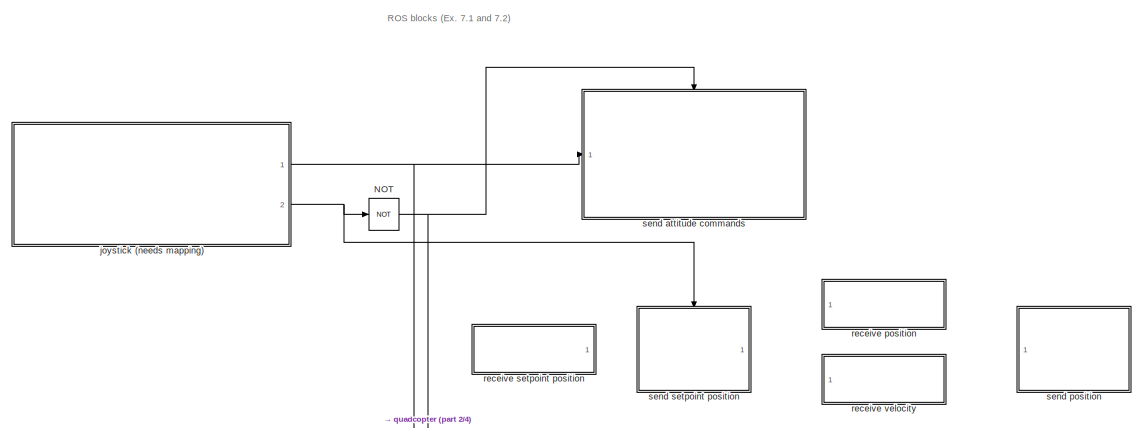
[diagram: root canvas - part 1/4, top center region]
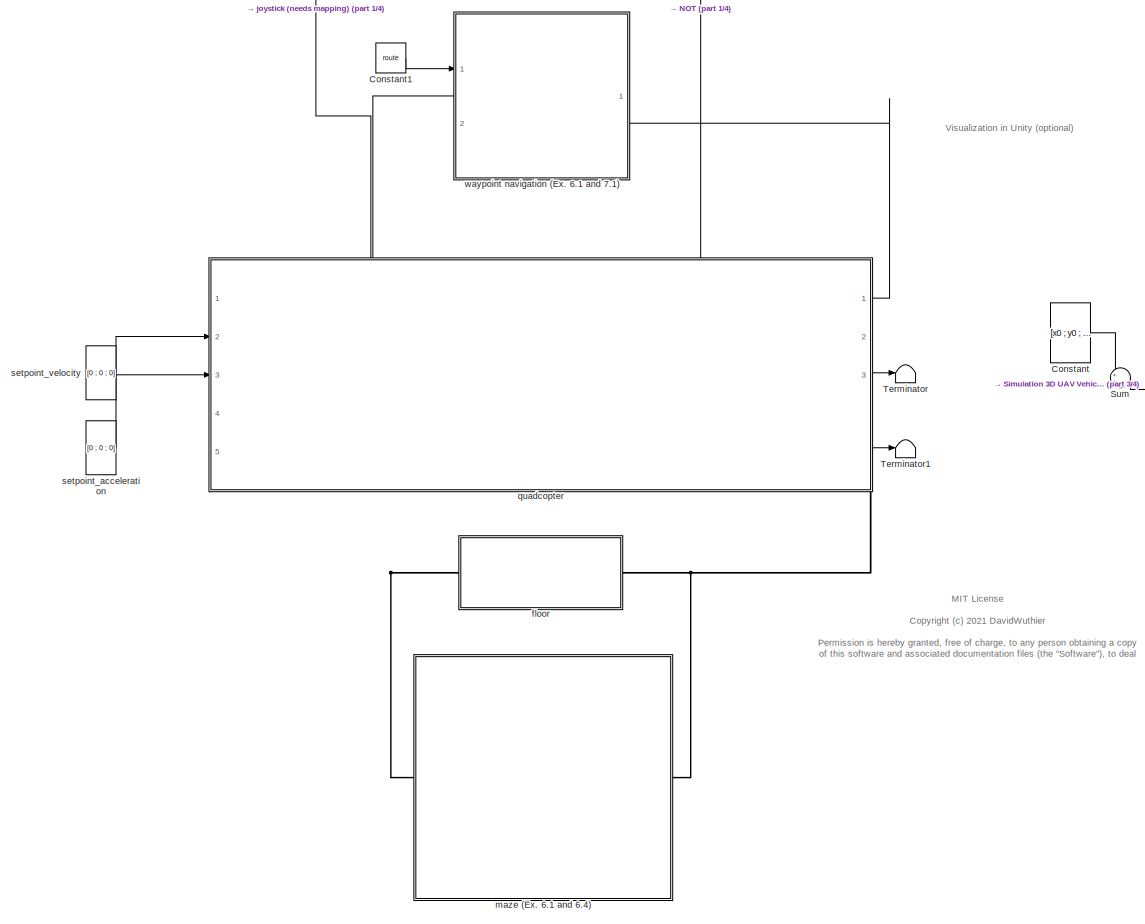
[diagram: root canvas - part 2/4, central region]
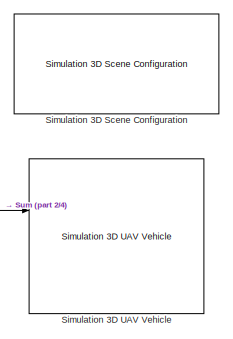
[diagram: root canvas - part 3/4, middle right region]
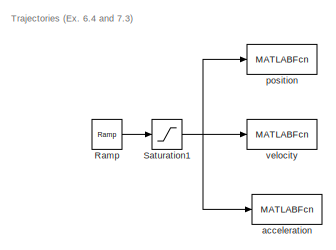
[diagram: root canvas - part 4/4, middle left region]
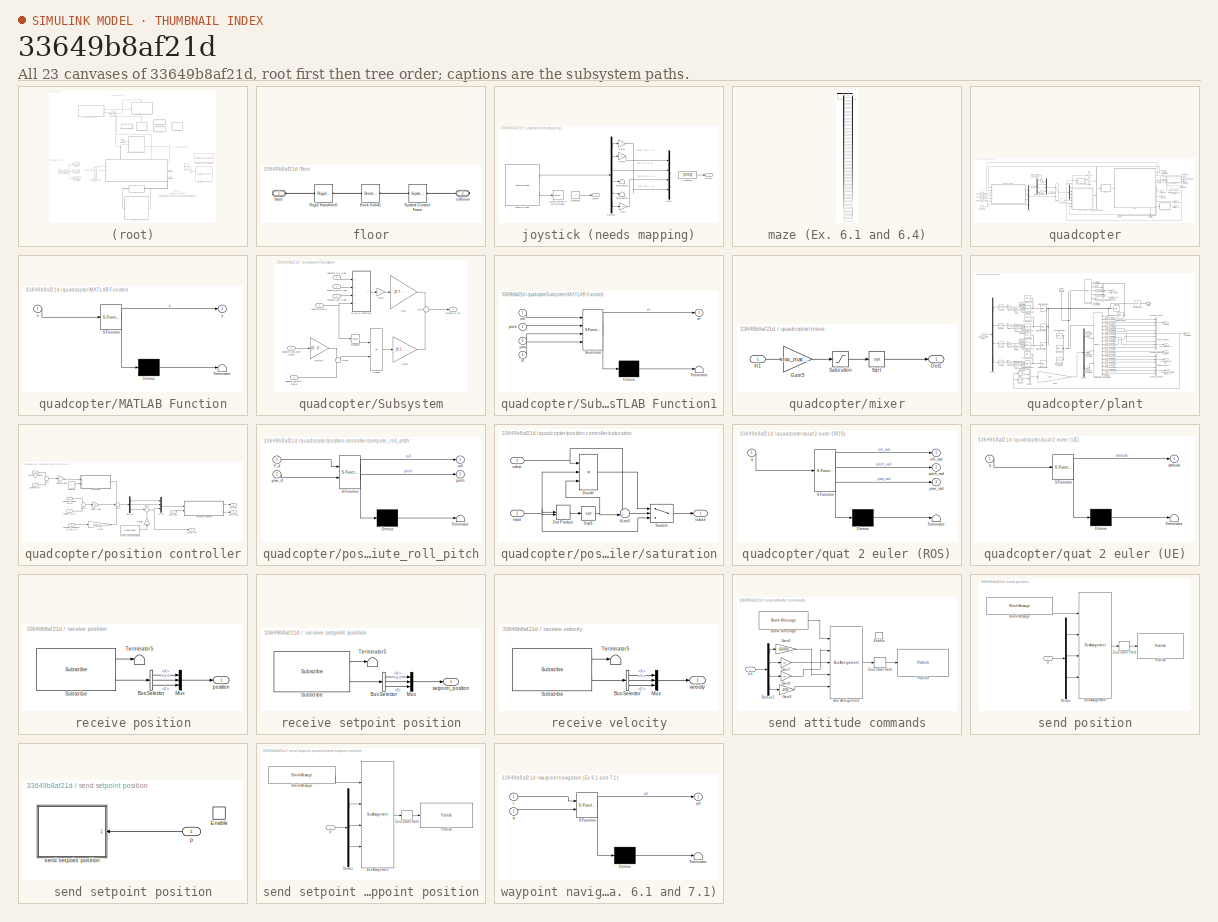
[diagram: thumbnail index - all 23 canvases of the model, root first then tree order]
MODEL slx_33649b8af21d
KIND model
CONFIG AbsTol = auto
CONFIG EnableMultiTasking = off
CONFIG FixedStep = sample_time
CONFIG MaxStep = auto
CONFIG MinStep = auto
CONFIG RelTol = 1e-3
CONFIG SampleTimeConstraint = Unconstrained
CONFIG SolverName = FixedStepAuto
CONFIG StartTime = 0.0
CONFIG StopTime = Inf
WORKSPACE source: external: MAT-File  (data not in archive)
BLOCK [Constant] Constant
  Commented = on
  Value = [x0 ; y0 ; 0]
  VectorParams1D = off
BLOCK [Constant] Constant1
  Value = route
BLOCK [Logic] NOT
  AllPortsSameDT = off
  IconShape = distinctive
  Operator = NOT
  OutDataTypeStr = boolean
  Ports = [1, 1]
BLOCK [Reference] Ramp  REF=simulink/Sources/Ramp
  Ports = [0, 1]
  SourceBlock = simulink/Sources/Ramp
  SourceProductBaseCode = SL
  SourceType = Ramp
BLOCK [Saturate] Saturation1
  LowerLimit = 0
  UpperLimit = knots(end)
BLOCK [Reference] Simulation 3D Scene Configuration  REF=sim3dlib/Simulation 3D Scene Configuration
  Commented = on
  Ports = []
  Priority = 0
  SourceBlock = sim3dlib/Simulation 3D Scene Configuration
  SourceProductBaseCode = VE,AE,DR,UV,VE
  SourceType = Simulation 3D Scene Configuration
BLOCK [Reference] Simulation 3D UAV Vehicle  REF=uavsim3dlib/Simulation 3D UAV Vehicle
  Commented = on
  Ports = [2]
  SourceBlock = uavsim3dlib/Simulation 3D UAV Vehicle
  SourceProductBaseCode = UV
  SourceType = Simulation 3D UAV Vehicle
BLOCK [Sum] Sum
  Commented = on
  Inputs = ++|
  Ports = [2, 1]
BLOCK [Terminator] Terminator
BLOCK [Terminator] Terminator1
BLOCK [MATLABFcn] acceleration
  MATLABFcn = eval(poly_traj, u, 2)
  Output1D = off
  OutputDimensions = [3 1]
  Ports = [1, 1]
BLOCK [SubSystem] floor
  Ports = [0, 0, 0, 0, 0, 1, 1]
  RequestExecContextInheritance = off
BLOCK [Reference] floor/Brick Solid1  REF=sm_lib/Body Elements/Brick Solid
  Ports = [0, 0, 0, 0, 0, 1, 1]
  SourceBlock = sm_lib/Body Elements/Brick Solid
  SourceProductBaseCode = MS
  SourceType = Brick Solid
BLOCK [Reference] floor/Rigid Transform5  REF=sm_lib/Frames and
Transforms/Rigid
Transform
  Ports = [0, 0, 0, 0, 0, 1, 1]
  SourceBlock = sm_lib/Frames and\nTransforms/Rigid\nTransform
  SourceProductBaseCode = MS
  SourceType = Rigid\nTransform
BLOCK [Reference] floor/Spatial Contact Force  REF=sm_lib/Forces and
Torques/Spatial
Contact Force
  NameLocation = top
  Ports = [0, 0, 0, 0, 0, 1, 1]
  SourceBlock = sm_lib/Forces and\nTorques/Spatial\nContact Force
  SourceProductBaseCode = MS
  SourceType = Spatial\nContact Force
BLOCK [PMIOPort] floor/base
  Side = Left
BLOCK [PMIOPort] floor/collision
  Port = 2
  Side = Right
BLOCK [SubSystem] joystick (needs mapping)
  Ports = [0, 2]
  RequestExecContextInheritance = off
BLOCK [Constant] joystick (needs mapping)/Constant
  Value = [0 0 0 0]
BLOCK [Constant] joystick (needs mapping)/Constant1
BLOCK [Demux] joystick (needs mapping)/Demux1
  Commented = on
  Outputs = 6
  Ports = [1, 6]
BLOCK [Gain] joystick (needs mapping)/Gain
  Commented = on
  Gain = -1
BLOCK [Gain] joystick (needs mapping)/Gain1
  Commented = on
  Gain = -1
BLOCK [Gain] joystick (needs mapping)/Gain2
  Commented = on
  Gain = -1
BLOCK [Reference] joystick (needs mapping)/Joystick Input  REF=vrlib/Joystick Input
  Commented = on
  Ports = [0, 2]
  SourceBlock = vrlib/Joystick Input
  SourceProductBaseCode = SL
  SourceType = Joystick Input
BLOCK [Mux] joystick (needs mapping)/Mux1
  Commented = on
  DisplayOption = bar
  Ports = [4, 1]
BLOCK [Selector] joystick (needs mapping)/Select button to switch mode
  Commented = on
  IndexOptions = Index vector (dialog)
  Indices = 8
  InputPortWidth = 15
  OutputSizes = 1
  Ports = [1, 1]
BLOCK [Terminator] joystick (needs mapping)/Terminator8
  Commented = on
BLOCK [Terminator] joystick (needs mapping)/Terminator9
  Commented = on
BLOCK [Outport] joystick (needs mapping)/button
  Port = 2
BLOCK [Outport] joystick (needs mapping)/sticks
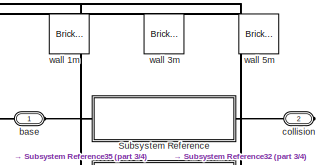
[diagram: maze (Ex. 6.1 and 6.4) - part 1/4, full width, top band]
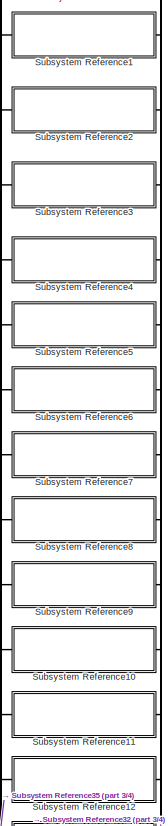
[diagram: maze (Ex. 6.1 and 6.4) - part 2/4, top center region]
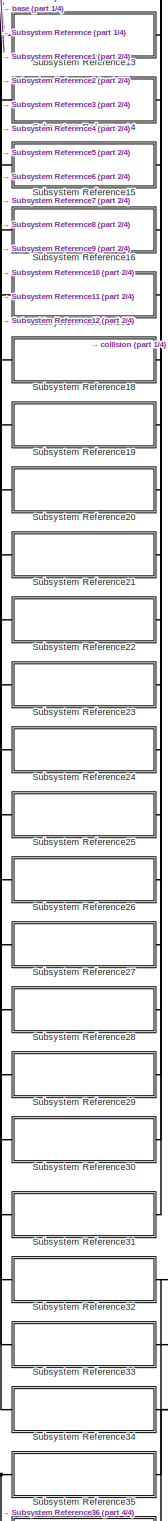
[diagram: maze (Ex. 6.1 and 6.4) - part 3/4, bottom center region]
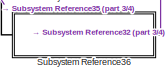
[diagram: maze (Ex. 6.1 and 6.4) - part 4/4, bottom center region]
BLOCK [SubSystem] maze (Ex. 6.1 and 6.4)
  Ports = [0, 0, 0, 0, 0, 1, 1]
  RequestExecContextInheritance = off
BLOCK [SubSystem] maze (Ex. 6.1 and 6.4)/Subsystem Reference
  Ports = [0, 0, 0, 0, 0, 1, 1]
  ReferencedSubsystem = uas_wall
  RequestExecContextInheritance = off
  l = 5
  x = -1
  y = 1.5
  yaw = 0
BLOCK [SubSystem] maze (Ex. 6.1 and 6.4)/Subsystem Reference1
  Ports = [0, 0, 0, 0, 0, 1, 1]
  ReferencedSubsystem = uas_wall
  RequestExecContextInheritance = off
  l = 5
  x = -1
  y = 7.5
  yaw = 0
BLOCK [SubSystem] maze (Ex. 6.1 and 6.4)/Subsystem Reference10
  Ports = [0, 0, 0, 0, 0, 1, 1]
  ReferencedSubsystem = uas_wall
  RequestExecContextInheritance = off
  l = 5
  x = 7.5
  y = 10
  yaw = pi/2
BLOCK [SubSystem] maze (Ex. 6.1 and 6.4)/Subsystem Reference11
  Ports = [0, 0, 0, 0, 0, 1, 1]
  ReferencedSubsystem = uas_wall
  RequestExecContextInheritance = off
  l = 5
  x = 5
  y = 10
  yaw = pi/2
BLOCK [SubSystem] maze (Ex. 6.1 and 6.4)/Subsystem Reference12
  Ports = [0, 0, 0, 0, 0, 1, 1]
  ReferencedSubsystem = uas_wall
  RequestExecContextInheritance = off
  l = 5
  x = 1.5
  y = 1
  yaw = pi/2
BLOCK [SubSystem] maze (Ex. 6.1 and 6.4)/Subsystem Reference13
  Ports = [0, 0, 0, 0, 0, 1, 1]
  ReferencedSubsystem = uas_wall
  RequestExecContextInheritance = off
  l = 3
  x = 4.5
  y = 1
  yaw = pi/2
BLOCK [SubSystem] maze (Ex. 6.1 and 6.4)/Subsystem Reference14
  Ports = [0, 0, 0, 0, 0, 1, 1]
  ReferencedSubsystem = uas_wall
  RequestExecContextInheritance = off
  l = 3
  x = 8
  y = 2.5
  yaw = 0
BLOCK [SubSystem] maze (Ex. 6.1 and 6.4)/Subsystem Reference15
  Ports = [0, 0, 0, 0, 0, 1, 1]
  ReferencedSubsystem = uas_wall
  RequestExecContextInheritance = off
  l = 1
  x = 6
  y = 4.5
  yaw = 0
BLOCK [SubSystem] maze (Ex. 6.1 and 6.4)/Subsystem Reference16
  Ports = [0, 0, 0, 0, 0, 1, 1]
  ReferencedSubsystem = uas_wall
  RequestExecContextInheritance = off
  l = 1
  x = 6
  y = 1.5
  yaw = 0
BLOCK [SubSystem] maze (Ex. 6.1 and 6.4)/Subsystem Reference17
  Ports = [0, 0, 0, 0, 0, 1, 1]
  ReferencedSubsystem = uas_wall
  RequestExecContextInheritance = off
  l = 1
  x = 2
  y = 1.5
  yaw = 0
BLOCK [SubSystem] maze (Ex. 6.1 and 6.4)/Subsystem Reference18
  Ports = [0, 0, 0, 0, 0, 1, 1]
  ReferencedSubsystem = uas_wall
  RequestExecContextInheritance = off
  l = 1
  x = 0
  y = 2.5
  yaw = 0
BLOCK [SubSystem] maze (Ex. 6.1 and 6.4)/Subsystem Reference19
  Ports = [0, 0, 0, 0, 0, 1, 1]
  ReferencedSubsystem = uas_wall
  RequestExecContextInheritance = off
  l = 5
  x = 5.5
  y = 4
  yaw = pi/2
BLOCK [SubSystem] maze (Ex. 6.1 and 6.4)/Subsystem Reference2
  Ports = [0, 0, 0, 0, 0, 1, 1]
  ReferencedSubsystem = uas_wall
  RequestExecContextInheritance = off
  l = 5
  x = -1
  y = 5
  yaw = 0
BLOCK [SubSystem] maze (Ex. 6.1 and 6.4)/Subsystem Reference20
  Ports = [0, 0, 0, 0, 0, 1, 1]
  ReferencedSubsystem = uas_wall
  RequestExecContextInheritance = off
  l = 1
  x = 4
  y = 3.5
  yaw = 0
BLOCK [SubSystem] maze (Ex. 6.1 and 6.4)/Subsystem Reference21
  Ports = [0, 0, 0, 0, 0, 1, 1]
  ReferencedSubsystem = uas_wall
  RequestExecContextInheritance = off
  l = 1
  x = 2.5
  y = 4
  yaw = pi/2
BLOCK [SubSystem] maze (Ex. 6.1 and 6.4)/Subsystem Reference22
  Ports = [0, 0, 0, 0, 0, 1, 1]
  ReferencedSubsystem = uas_wall
  RequestExecContextInheritance = off
  l = 1
  x = 0.5
  y = 2
  yaw = pi/2
BLOCK [SubSystem] maze (Ex. 6.1 and 6.4)/Subsystem Reference23
  Ports = [0, 0, 0, 0, 0, 1, 1]
  ReferencedSubsystem = uas_wall
  RequestExecContextInheritance = off
  l = 1
  x = 1.5
  y = 2
  yaw = pi/2
BLOCK [SubSystem] maze (Ex. 6.1 and 6.4)/Subsystem Reference24
  Ports = [0, 0, 0, 0, 0, 1, 1]
  ReferencedSubsystem = uas_wall
  RequestExecContextInheritance = off
  l = 1
  x = -0.5
  y = 3
  yaw = pi/2
BLOCK [SubSystem] maze (Ex. 6.1 and 6.4)/Subsystem Reference25
  Ports = [0, 0, 0, 0, 0, 1, 1]
  ReferencedSubsystem = uas_wall
  RequestExecContextInheritance = off
  l = 1
  x = 2
  y = 4.5
  yaw = 0
BLOCK [SubSystem] maze (Ex. 6.1 and 6.4)/Subsystem Reference26
  Ports = [0, 0, 0, 0, 0, 1, 1]
  ReferencedSubsystem = uas_wall
  RequestExecContextInheritance = off
  l = 1
  x = 1.5
  y = 5
  yaw = pi/2
BLOCK [SubSystem] maze (Ex. 6.1 and 6.4)/Subsystem Reference27
  Ports = [0, 0, 0, 0, 0, 1, 1]
  ReferencedSubsystem = uas_wall
  RequestExecContextInheritance = off
  l = 1
  x = 0.5
  y = 7
  yaw = pi/2
BLOCK [SubSystem] maze (Ex. 6.1 and 6.4)/Subsystem Reference28
  Ports = [0, 0, 0, 0, 0, 1, 1]
  ReferencedSubsystem = uas_wall
  RequestExecContextInheritance = off
  l = 1
  x = 1
  y = 7.5
  yaw = 0
BLOCK [SubSystem] maze (Ex. 6.1 and 6.4)/Subsystem Reference29
  Ports = [0, 0, 0, 0, 0, 1, 1]
  ReferencedSubsystem = uas_wall
  RequestExecContextInheritance = off
  l = 2
  x = 8
  y = 7
  yaw = 0
BLOCK [SubSystem] maze (Ex. 6.1 and 6.4)/Subsystem Reference3
  Ports = [0, 0, 0, 0, 0, 1, 1]
  ReferencedSubsystem = uas_wall
  RequestExecContextInheritance = off
  l = 5
  x = 10
  y = 1.5
  yaw = 0
BLOCK [SubSystem] maze (Ex. 6.1 and 6.4)/Subsystem Reference30
  Ports = [0, 0, 0, 0, 0, 1, 1]
  ReferencedSubsystem = uas_wall
  RequestExecContextInheritance = off
  l = 1
  x = -0.5
  y = 7
  yaw = pi/2
BLOCK [SubSystem] maze (Ex. 6.1 and 6.4)/Subsystem Reference31
  Ports = [0, 0, 0, 0, 0, 1, 1]
  ReferencedSubsystem = uas_wall
  RequestExecContextInheritance = off
  l = 1
  x = 6
  y = 5.5
  yaw = 0
BLOCK [SubSystem] maze (Ex. 6.1 and 6.4)/Subsystem Reference32
  Ports = [0, 0, 0, 0, 0, 1, 1]
  ReferencedSubsystem = uas_wall
  RequestExecContextInheritance = off
  l = 5
  x = 5.5
  y = 8
  yaw = pi/2
BLOCK [SubSystem] maze (Ex. 6.1 and 6.4)/Subsystem Reference33
  Ports = [0, 0, 0, 0, 0, 1, 1]
  ReferencedSubsystem = uas_wall
  RequestExecContextInheritance = off
  l = 1
  x = 3.5
  y = 7
  yaw = pi/2
BLOCK [SubSystem] maze (Ex. 6.1 and 6.4)/Subsystem Reference34
  Ports = [0, 0, 0, 0, 0, 1, 1]
  ReferencedSubsystem = uas_wall
  RequestExecContextInheritance = off
  l = 1
  x = 3
  y = 7.5
  yaw = 0
BLOCK [SubSystem] maze (Ex. 6.1 and 6.4)/Subsystem Reference35
  Ports = [0, 0, 0, 0, 0, 1, 1]
  ReferencedSubsystem = uas_wall
  RequestExecContextInheritance = off
  l = 1
  x = 4
  y = 6.5
  yaw = 0
BLOCK [SubSystem] maze (Ex. 6.1 and 6.4)/Subsystem Reference36
  Ports = [0, 0, 0, 0, 0, 1, 1]
  ReferencedSubsystem = uas_wall
  RequestExecContextInheritance = off
  l = 1
  x = 4
  y = 7.5
  yaw = 0
BLOCK [SubSystem] maze (Ex. 6.1 and 6.4)/Subsystem Reference4
  Ports = [0, 0, 0, 0, 0, 1, 1]
  ReferencedSubsystem = uas_wall
  RequestExecContextInheritance = off
  l = 5
  x = 10
  y = 7.5
  yaw = 0
BLOCK [SubSystem] maze (Ex. 6.1 and 6.4)/Subsystem Reference5
  Ports = [0, 0, 0, 0, 0, 1, 1]
  ReferencedSubsystem = uas_wall
  RequestExecContextInheritance = off
  l = 5
  x = 10
  y = 5
  yaw = 0
BLOCK [SubSystem] maze (Ex. 6.1 and 6.4)/Subsystem Reference6
  Ports = [0, 0, 0, 0, 0, 1, 1]
  ReferencedSubsystem = uas_wall
  RequestExecContextInheritance = off
  l = 5
  x = 1.5
  y = -1
  yaw = pi/2
BLOCK [SubSystem] maze (Ex. 6.1 and 6.4)/Subsystem Reference7
  Ports = [0, 0, 0, 0, 0, 1, 1]
  ReferencedSubsystem = uas_wall
  RequestExecContextInheritance = off
  l = 5
  x = 7.5
  y = -1
  yaw = pi/2
BLOCK [SubSystem] maze (Ex. 6.1 and 6.4)/Subsystem Reference8
  Ports = [0, 0, 0, 0, 0, 1, 1]
  ReferencedSubsystem = uas_wall
  RequestExecContextInheritance = off
  l = 5
  x = 5
  y = -1
  yaw = pi/2
BLOCK [SubSystem] maze (Ex. 6.1 and 6.4)/Subsystem Reference9
  Ports = [0, 0, 0, 0, 0, 1, 1]
  ReferencedSubsystem = uas_wall
  RequestExecContextInheritance = off
  l = 5
  x = 1.5
  y = 10
  yaw = pi/2
BLOCK [PMIOPort] maze (Ex. 6.1 and 6.4)/base
  Side = Left
BLOCK [PMIOPort] maze (Ex. 6.1 and 6.4)/collision
  Port = 2
  Side = Right
BLOCK [Reference] maze (Ex. 6.1 and 6.4)/wall 1m  REF=sm_lib/Body Elements/Brick Solid
  Commented = on
  Ports = [0, 0, 0, 0, 0, 1, 1]
  SourceBlock = sm_lib/Body Elements/Brick Solid
  SourceProductBaseCode = MS
  SourceType = Brick Solid
BLOCK [Reference] maze (Ex. 6.1 and 6.4)/wall 3m  REF=sm_lib/Body Elements/Brick Solid
  Commented = on
  Ports = [0, 0, 0, 0, 0, 1, 1]
  SourceBlock = sm_lib/Body Elements/Brick Solid
  SourceProductBaseCode = MS
  SourceType = Brick Solid
BLOCK [Reference] maze (Ex. 6.1 and 6.4)/wall 5m  REF=sm_lib/Body Elements/Brick Solid
  Commented = on
  Ports = [0, 0, 0, 0, 0, 1, 1]
  SourceBlock = sm_lib/Body Elements/Brick Solid
  SourceProductBaseCode = MS
  SourceType = Brick Solid
BLOCK [MATLABFcn] position
  MATLABFcn = eval(poly_traj, u, 0)
  Output1D = off
  OutputDimensions = [3 1]
  Ports = [1, 1]
BLOCK [SubSystem] quadcopter
  PortSchema = {"entries":[{"content":{"sides":[{"content":{"connectorIds":["In1","In2","In3"]},"type":"ConnectorPlacement.EquallySpacedRectSide","uuid":"ed16c4a7-5f5f-48d5-8471-b227eef37b0b"},{"content":{"connectorIds":["Out1","Out2","Out3"],"side":"RIGHT"},"type":"ConnectorPlacement.EquallySpacedRectSide","uuid":"303ea24f-0a15-469a-b5d8-cc8b33d29b5f"},{"content":{"connectorIds":["In4","In5"],"side":"TOP"},"typ...<+438ch>
  Ports = [5, 3, 0, 0, 0, 0, 2]
  RequestExecContextInheritance = off
BLOCK [Constant] quadcopter/Constant
  Value = mass_total*g
BLOCK [Constant] quadcopter/Constant2
  Value = 0
BLOCK [Constant] quadcopter/Constant3
  Value = 0
BLOCK [Demux] quadcopter/Demux
  Ports = [1, 4]
BLOCK [Demux] quadcopter/Demux1
  Ports = [1, 4]
BLOCK [Product] quadcopter/Divide
  Inputs = */
  Ports = [2, 1]
BLOCK [Integrator] quadcopter/Integrator
  Ports = [1, 1]
  WrapState = on
BLOCK [MATLABFcn] quadcopter/Interpreted MATLAB Function
  MATLABFcn = quat2rotm(u)
  Output1D = off
  Ports = [1, 1]
BLOCK [SubSystem] quadcopter/MATLAB Function
  ErrorFcn = Stateflow.Translate.translate
  PermitHierarchicalResolution = ExplicitOnly
  Ports = [1, 1]
  RequestExecContextInheritance = off
  SFBlockType = MATLAB Function
  TreatAsAtomicUnit = on
BLOCK [Demux] quadcopter/MATLAB Function/ Demux 
  Outputs = 1
  Ports = [1, 1]
BLOCK [S-Function] quadcopter/MATLAB Function/ SFunction 
  EnableBusSupport = off
  FunctionName = sf_sfun
  PortCounts = [1 2]
  Ports = [1, 2]
  SFcnIsStateOwnerBlock = off
  SFunctionDeploymentMode = off
  Tag = Stateflow S-Function 7
BLOCK [Terminator] quadcopter/MATLAB Function/ Terminator 
BLOCK [Inport] quadcopter/MATLAB Function/u
BLOCK [Outport] quadcopter/MATLAB Function/y
BLOCK [Mux] quadcopter/Mux
  DisplayOption = bar
  Ports = [4, 1]
BLOCK [Mux] quadcopter/Mux1
  DisplayOption = bar
  Ports = [4, 1]
BLOCK [SubSystem] quadcopter/Subsystem
  Permissions = NoReadOrWrite
  Ports = [6, 1]
  RequestExecContextInheritance = off
BLOCK [Gain] quadcopter/Subsystem/Gain
  Gain = [0.7 ; 0.7 ; 0.035]
BLOCK [Gain] quadcopter/Subsystem/Gain1
  Gain = [0.1 ; 0.1 ; 0.025]
BLOCK [Gain] quadcopter/Subsystem/Gain2
  Gain = -1
BLOCK [SubSystem] quadcopter/Subsystem/MATLAB Function1
  ErrorFcn = Stateflow.Translate.translate
  PermitHierarchicalResolution = ExplicitOnly
  Ports = [4, 1]
  RequestExecContextInheritance = off
  SFBlockType = MATLAB Function
  TreatAsAtomicUnit = on
BLOCK [Demux] quadcopter/Subsystem/MATLAB Function1/ Demux 
  Outputs = 1
  Ports = [1, 1]
BLOCK [S-Function] quadcopter/Subsystem/MATLAB Function1/ SFunction 
  EnableBusSupport = off
  FunctionName = sf_sfun
  PortCounts = [4 2]
  Ports = [4, 2]
  SFcnIsStateOwnerBlock = off
  SFunctionDeploymentMode = off
  Tag = Stateflow S-Function 8
BLOCK [Terminator] quadcopter/Subsystem/MATLAB Function1/ Terminator 
BLOCK [Inport] quadcopter/Subsystem/MATLAB Function1/R
  Port = 4
BLOCK [Outport] quadcopter/Subsystem/MATLAB Function1/er
BLOCK [Inport] quadcopter/Subsystem/MATLAB Function1/pitch
  Port = 2
BLOCK [Inport] quadcopter/Subsystem/MATLAB Function1/roll
BLOCK [Inport] quadcopter/Subsystem/MATLAB Function1/yaw
  Port = 3
BLOCK [Gain] quadcopter/Subsystem/Multiply
  Gain = [0 ; 0 ; 1]
  Multiplication = Matrix(K*u)
BLOCK [Product] quadcopter/Subsystem/Product
  Multiplication = Matrix(*)
  Ports = [2, 1]
BLOCK [Sum] quadcopter/Subsystem/Sum
  Ports = [2, 1]
BLOCK [Sum] quadcopter/Subsystem/Sum1
  Inputs = +|-
  Ports = [2, 1]
BLOCK [Math] quadcopter/Subsystem/Transpose
  Operator = transpose
  Ports = [1, 1]
BLOCK [Inport] quadcopter/Subsystem/angular_velocity [rad//s]
  Port = 6
BLOCK [Inport] quadcopter/Subsystem/rotation_matrix
  Port = 5
BLOCK [Inport] quadcopter/Subsystem/setpoint_pitch [rad]
  Port = 2
BLOCK [Inport] quadcopter/Subsystem/setpoint_roll [rad]
BLOCK [Inport] quadcopter/Subsystem/setpoint_yaw [rad]
  Port = 3
BLOCK [Inport] quadcopter/Subsystem/setpoint_yaw_rate [rad//s]
  Port = 4
BLOCK [Outport] quadcopter/Subsystem/torques [N*m]
BLOCK [Sum] quadcopter/Sum
  Inputs = ++|
  Ports = [2, 1]
BLOCK [Switch] quadcopter/Switch
  Criteria = u2 ~= 0
  InputSameDT = off
  SaturateOnIntegerOverflow = off
BLOCK [Terminator] quadcopter/Terminator
BLOCK [Terminator] quadcopter/Terminator1
BLOCK [Terminator] quadcopter/Terminator2
BLOCK [Terminator] quadcopter/Terminator3
BLOCK [Terminator] quadcopter/Terminator4
BLOCK [Terminator] quadcopter/Terminator5
BLOCK [Terminator] quadcopter/Terminator6
BLOCK [Terminator] quadcopter/Terminator7
BLOCK [Concatenate] quadcopter/Vector Concatenate
  Ports = [2, 1]
BLOCK [Outport] quadcopter/attitude_ue
  Port = 3
BLOCK [PMIOPort] quadcopter/base
  Side = Right
BLOCK [PMIOPort] quadcopter/collision
  Port = 2
  Side = Right
BLOCK [Inport] quadcopter/joystick
  Port = 4
BLOCK [Inport] quadcopter/joystick_on
  Port = 5
BLOCK [SubSystem] quadcopter/mixer
  Ports = [1, 1]
  RequestExecContextInheritance = off
BLOCK [Gain] quadcopter/mixer/Gain5
  Gain = mix_matrix
  Multiplication = Matrix(K*u)
BLOCK [Inport] quadcopter/mixer/In1
BLOCK [Outport] quadcopter/mixer/Out1
BLOCK [Saturate] quadcopter/mixer/Saturation
  LowerLimit = 0
  UpperLimit = max_rot_velocity^2
BLOCK [Sqrt] quadcopter/mixer/Sqrt
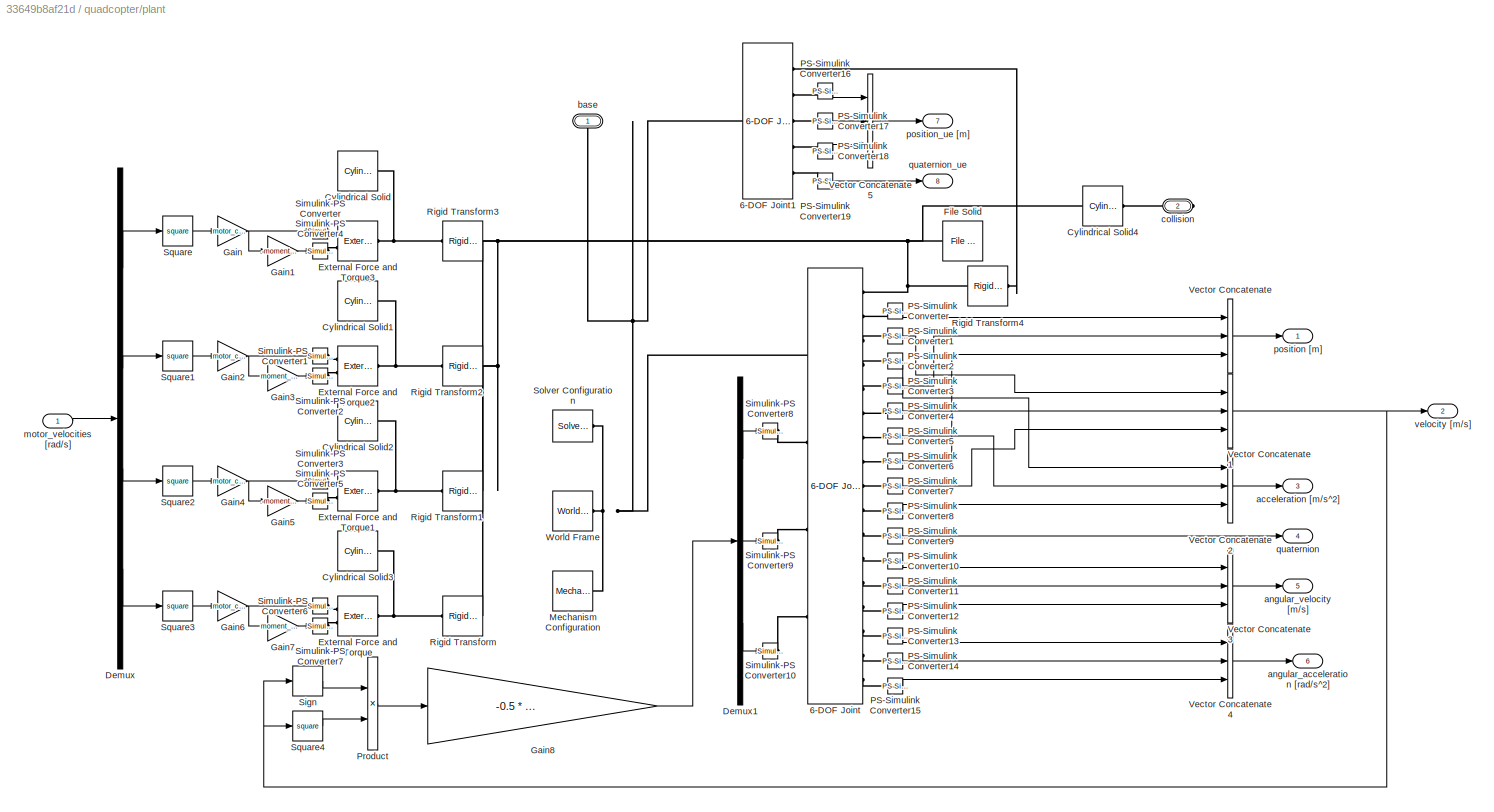
BLOCK [SubSystem] quadcopter/plant
  Permissions = NoReadOrWrite
  PortSchema = {"entries":[{"content":{"sides":[{"content":{"connectorIds":["In1"]},"type":"ConnectorPlacement.EquallySpacedRectSide","uuid":"6e9c785b-7a58-4a83-84e6-bbea81e0823c"},{"content":{"connectorIds":["Out1","Out2","Out3","Out4","Out5","Out6","Out7","Out8"],"side":"RIGHT"},"type":"ConnectorPlacement.EquallySpacedRectSide","uuid":"b008e1e2-aa95-4897-b360-2fe655e93601"},{"content":{"connectorIds":[],"side"...<+450ch>
  Ports = [1, 8, 0, 0, 0, 0, 2]
  RequestExecContextInheritance = off
BLOCK [Reference] quadcopter/plant/6-DOF Joint  REF=sm_lib/Joints/6-DOF Joint
  Ports = [0, 0, 0, 0, 0, 4, 17]
  SourceBlock = sm_lib/Joints/6-DOF Joint
  SourceProductBaseCode = MS
  SourceType = 6-DOF Joint
BLOCK [Reference] quadcopter/plant/6-DOF Joint1  REF=sm_lib/Joints/6-DOF Joint
  Ports = [0, 0, 0, 0, 0, 1, 5]
  SourceBlock = sm_lib/Joints/6-DOF Joint
  SourceProductBaseCode = MS
  SourceType = 6-DOF Joint
BLOCK [Reference] quadcopter/plant/Cylindrical Solid  REF=sm_lib/Body Elements/Cylindrical Solid
  Ports = [0, 0, 0, 0, 0, 0, 1]
  SourceBlock = sm_lib/Body Elements/Cylindrical Solid
  SourceProductBaseCode = MS
  SourceType = Cylindrical Solid
BLOCK [Reference] quadcopter/plant/Cylindrical Solid1  REF=sm_lib/Body Elements/Cylindrical Solid
  Ports = [0, 0, 0, 0, 0, 0, 1]
  SourceBlock = sm_lib/Body Elements/Cylindrical Solid
  SourceProductBaseCode = MS
  SourceType = Cylindrical Solid
BLOCK [Reference] quadcopter/plant/Cylindrical Solid2  REF=sm_lib/Body Elements/Cylindrical Solid
  Ports = [0, 0, 0, 0, 0, 0, 1]
  SourceBlock = sm_lib/Body Elements/Cylindrical Solid
  SourceProductBaseCode = MS
  SourceType = Cylindrical Solid
BLOCK [Reference] quadcopter/plant/Cylindrical Solid3  REF=sm_lib/Body Elements/Cylindrical Solid
  Ports = [0, 0, 0, 0, 0, 0, 1]
  SourceBlock = sm_lib/Body Elements/Cylindrical Solid
  SourceProductBaseCode = MS
  SourceType = Cylindrical Solid
BLOCK [Reference] quadcopter/plant/Cylindrical Solid4  REF=sm_lib/Body Elements/Cylindrical Solid
  Ports = [0, 0, 0, 0, 0, 1, 1]
  SourceBlock = sm_lib/Body Elements/Cylindrical Solid
  SourceProductBaseCode = MS
  SourceType = Cylindrical Solid
BLOCK [Demux] quadcopter/plant/Demux
  Ports = [1, 4]
BLOCK [Demux] quadcopter/plant/Demux1
  Outputs = 3
  Ports = [1, 3]
BLOCK [Reference] quadcopter/plant/External Force and Torque  REF=sm_lib/Forces and
Torques/External Force
and Torque
  NameLocation = top
  Ports = [0, 0, 0, 0, 0, 2, 1]
  SourceBlock = sm_lib/Forces and\nTorques/External Force\nand Torque
  SourceProductBaseCode = MS
  SourceType = External Force\nand Torque
BLOCK [Reference] quadcopter/plant/External Force and Torque1  REF=sm_lib/Forces and
Torques/External Force
and Torque
  NameLocation = top
  Ports = [0, 0, 0, 0, 0, 2, 1]
  SourceBlock = sm_lib/Forces and\nTorques/External Force\nand Torque
  SourceProductBaseCode = MS
  SourceType = External Force\nand Torque
BLOCK [Reference] quadcopter/plant/External Force and Torque2  REF=sm_lib/Forces and
Torques/External Force
and Torque
  NameLocation = top
  Ports = [0, 0, 0, 0, 0, 2, 1]
  SourceBlock = sm_lib/Forces and\nTorques/External Force\nand Torque
  SourceProductBaseCode = MS
  SourceType = External Force\nand Torque
BLOCK [Reference] quadcopter/plant/External Force and Torque3  REF=sm_lib/Forces and
Torques/External Force
and Torque
  NameLocation = top
  Ports = [0, 0, 0, 0, 0, 2, 1]
  SourceBlock = sm_lib/Forces and\nTorques/External Force\nand Torque
  SourceProductBaseCode = MS
  SourceType = External Force\nand Torque
BLOCK [Reference] quadcopter/plant/File Solid  REF=sm_lib/Body Elements/File Solid
  Ports = [0, 0, 0, 0, 0, 0, 1]
  SourceBlock = sm_lib/Body Elements/File Solid
  SourceProductBaseCode = MS
  SourceType = File Solid
BLOCK [Gain] quadcopter/plant/Gain
  Gain = motor_constant
BLOCK [Gain] quadcopter/plant/Gain1
  Gain = -moment_constant
BLOCK [Gain] quadcopter/plant/Gain2
  Gain = motor_constant
BLOCK [Gain] quadcopter/plant/Gain3
  Gain = moment_constant
BLOCK [Gain] quadcopter/plant/Gain4
  Gain = motor_constant
BLOCK [Gain] quadcopter/plant/Gain5
  Gain = -moment_constant
BLOCK [Gain] quadcopter/plant/Gain6
  Gain = motor_constant
BLOCK [Gain] quadcopter/plant/Gain7
  Gain = moment_constant
BLOCK [Gain] quadcopter/plant/Gain8
  Gain = -0.5 * drag_coefficient * reference_area
BLOCK [Reference] quadcopter/plant/Mechanism Configuration  REF=sm_lib/Utilities/Mechanism
Configuration
  Ports = [0, 0, 0, 0, 0, 0, 1]
  SourceBlock = sm_lib/Utilities/Mechanism\nConfiguration
  SourceProductBaseCode = MS
  SourceType = Mechanism\nConfiguration
BLOCK [Reference] quadcopter/plant/PS-Simulink Converter  REF=nesl_utility/PS-Simulink
Converter
  Ports = [0, 1, 0, 0, 0, 1]
  SourceBlock = nesl_utility/PS-Simulink\nConverter
  SourceProductBaseCode = SS,PW,VE
  SourceType = PS-Simulink\nConverter
BLOCK [Reference] quadcopter/plant/PS-Simulink Converter1  REF=nesl_utility/PS-Simulink
Converter
  Ports = [0, 1, 0, 0, 0, 1]
  SourceBlock = nesl_utility/PS-Simulink\nConverter
  SourceProductBaseCode = SS,PW,VE
  SourceType = PS-Simulink\nConverter
BLOCK [Reference] quadcopter/plant/PS-Simulink Converter10  REF=nesl_utility/PS-Simulink
Converter
  Ports = [0, 1, 0, 0, 0, 1]
  SourceBlock = nesl_utility/PS-Simulink\nConverter
  SourceProductBaseCode = SS,PW,VE
  SourceType = PS-Simulink\nConverter
BLOCK [Reference] quadcopter/plant/PS-Simulink Converter11  REF=nesl_utility/PS-Simulink
Converter
  Ports = [0, 1, 0, 0, 0, 1]
  SourceBlock = nesl_utility/PS-Simulink\nConverter
  SourceProductBaseCode = SS,PW,VE
  SourceType = PS-Simulink\nConverter
BLOCK [Reference] quadcopter/plant/PS-Simulink Converter12  REF=nesl_utility/PS-Simulink
Converter
  Ports = [0, 1, 0, 0, 0, 1]
  SourceBlock = nesl_utility/PS-Simulink\nConverter
  SourceProductBaseCode = SS,PW,VE
  SourceType = PS-Simulink\nConverter
BLOCK [Reference] quadcopter/plant/PS-Simulink Converter13  REF=nesl_utility/PS-Simulink
Converter
  Ports = [0, 1, 0, 0, 0, 1]
  SourceBlock = nesl_utility/PS-Simulink\nConverter
  SourceProductBaseCode = SS,PW,VE
  SourceType = PS-Simulink\nConverter
BLOCK [Reference] quadcopter/plant/PS-Simulink Converter14  REF=nesl_utility/PS-Simulink
Converter
  Ports = [0, 1, 0, 0, 0, 1]
  SourceBlock = nesl_utility/PS-Simulink\nConverter
  SourceProductBaseCode = SS,PW,VE
  SourceType = PS-Simulink\nConverter
BLOCK [Reference] quadcopter/plant/PS-Simulink Converter15  REF=nesl_utility/PS-Simulink
Converter
  Ports = [0, 1, 0, 0, 0, 1]
  SourceBlock = nesl_utility/PS-Simulink\nConverter
  SourceProductBaseCode = SS,PW,VE
  SourceType = PS-Simulink\nConverter
BLOCK [Reference] quadcopter/plant/PS-Simulink Converter16  REF=nesl_utility/PS-Simulink
Converter
  Ports = [0, 1, 0, 0, 0, 1]
  SourceBlock = nesl_utility/PS-Simulink\nConverter
  SourceProductBaseCode = SS,PW,VE
  SourceType = PS-Simulink\nConverter
BLOCK [Reference] quadcopter/plant/PS-Simulink Converter17  REF=nesl_utility/PS-Simulink
Converter
  Ports = [0, 1, 0, 0, 0, 1]
  SourceBlock = nesl_utility/PS-Simulink\nConverter
  SourceProductBaseCode = SS,PW,VE
  SourceType = PS-Simulink\nConverter
BLOCK [Reference] quadcopter/plant/PS-Simulink Converter18  REF=nesl_utility/PS-Simulink
Converter
  Ports = [0, 1, 0, 0, 0, 1]
  SourceBlock = nesl_utility/PS-Simulink\nConverter
  SourceProductBaseCode = SS,PW,VE
  SourceType = PS-Simulink\nConverter
BLOCK [Reference] quadcopter/plant/PS-Simulink Converter19  REF=nesl_utility/PS-Simulink
Converter
  Ports = [0, 1, 0, 0, 0, 1]
  SourceBlock = nesl_utility/PS-Simulink\nConverter
  SourceProductBaseCode = SS,PW,VE
  SourceType = PS-Simulink\nConverter
BLOCK [Reference] quadcopter/plant/PS-Simulink Converter2  REF=nesl_utility/PS-Simulink
Converter
  Ports = [0, 1, 0, 0, 0, 1]
  SourceBlock = nesl_utility/PS-Simulink\nConverter
  SourceProductBaseCode = SS,PW,VE
  SourceType = PS-Simulink\nConverter
BLOCK [Reference] quadcopter/plant/PS-Simulink Converter3  REF=nesl_utility/PS-Simulink
Converter
  Ports = [0, 1, 0, 0, 0, 1]
  SourceBlock = nesl_utility/PS-Simulink\nConverter
  SourceProductBaseCode = SS,PW,VE
  SourceType = PS-Simulink\nConverter
BLOCK [Reference] quadcopter/plant/PS-Simulink Converter4  REF=nesl_utility/PS-Simulink
Converter
  Ports = [0, 1, 0, 0, 0, 1]
  SourceBlock = nesl_utility/PS-Simulink\nConverter
  SourceProductBaseCode = SS,PW,VE
  SourceType = PS-Simulink\nConverter
BLOCK [Reference] quadcopter/plant/PS-Simulink Converter5  REF=nesl_utility/PS-Simulink
Converter
  Ports = [0, 1, 0, 0, 0, 1]
  SourceBlock = nesl_utility/PS-Simulink\nConverter
  SourceProductBaseCode = SS,PW,VE
  SourceType = PS-Simulink\nConverter
BLOCK [Reference] quadcopter/plant/PS-Simulink Converter6  REF=nesl_utility/PS-Simulink
Converter
  Ports = [0, 1, 0, 0, 0, 1]
  SourceBlock = nesl_utility/PS-Simulink\nConverter
  SourceProductBaseCode = SS,PW,VE
  SourceType = PS-Simulink\nConverter
BLOCK [Reference] quadcopter/plant/PS-Simulink Converter7  REF=nesl_utility/PS-Simulink
Converter
  Ports = [0, 1, 0, 0, 0, 1]
  SourceBlock = nesl_utility/PS-Simulink\nConverter
  SourceProductBaseCode = SS,PW,VE
  SourceType = PS-Simulink\nConverter
BLOCK [Reference] quadcopter/plant/PS-Simulink Converter8  REF=nesl_utility/PS-Simulink
Converter
  Ports = [0, 1, 0, 0, 0, 1]
  SourceBlock = nesl_utility/PS-Simulink\nConverter
  SourceProductBaseCode = SS,PW,VE
  SourceType = PS-Simulink\nConverter
BLOCK [Reference] quadcopter/plant/PS-Simulink Converter9  REF=nesl_utility/PS-Simulink
Converter
  Ports = [0, 1, 0, 0, 0, 1]
  SourceBlock = nesl_utility/PS-Simulink\nConverter
  SourceProductBaseCode = SS,PW,VE
  SourceType = PS-Simulink\nConverter
BLOCK [Product] quadcopter/plant/Product
  Ports = [2, 1]
BLOCK [Reference] quadcopter/plant/Rigid Transform  REF=sm_lib/Frames and
Transforms/Rigid
Transform
  NameLocation = top
  Ports = [0, 0, 0, 0, 0, 1, 1]
  SourceBlock = sm_lib/Frames and\nTransforms/Rigid\nTransform
  SourceProductBaseCode = MS
  SourceType = Rigid\nTransform
BLOCK [Reference] quadcopter/plant/Rigid Transform1  REF=sm_lib/Frames and
Transforms/Rigid
Transform
  NameLocation = top
  Ports = [0, 0, 0, 0, 0, 1, 1]
  SourceBlock = sm_lib/Frames and\nTransforms/Rigid\nTransform
  SourceProductBaseCode = MS
  SourceType = Rigid\nTransform
BLOCK [Reference] quadcopter/plant/Rigid Transform2  REF=sm_lib/Frames and
Transforms/Rigid
Transform
  NameLocation = top
  Ports = [0, 0, 0, 0, 0, 1, 1]
  SourceBlock = sm_lib/Frames and\nTransforms/Rigid\nTransform
  SourceProductBaseCode = MS
  SourceType = Rigid\nTransform
BLOCK [Reference] quadcopter/plant/Rigid Transform3  REF=sm_lib/Frames and
Transforms/Rigid
Transform
  NameLocation = top
  Ports = [0, 0, 0, 0, 0, 1, 1]
  SourceBlock = sm_lib/Frames and\nTransforms/Rigid\nTransform
  SourceProductBaseCode = MS
  SourceType = Rigid\nTransform
BLOCK [Reference] quadcopter/plant/Rigid Transform4  REF=sm_lib/Frames and
Transforms/Rigid
Transform
  Ports = [0, 0, 0, 0, 0, 1, 1]
  SourceBlock = sm_lib/Frames and\nTransforms/Rigid\nTransform
  SourceProductBaseCode = MS
  SourceType = Rigid\nTransform
BLOCK [Signum] quadcopter/plant/Sign
BLOCK [Reference] quadcopter/plant/Simulink-PS Converter  REF=nesl_utility/Simulink-PS
Converter
  Ports = [1, 0, 0, 0, 0, 0, 1]
  SourceBlock = nesl_utility/Simulink-PS\nConverter
  SourceProductBaseCode = SS,PW,VE
  SourceType = Simulink-PS\nConverter
BLOCK [Reference] quadcopter/plant/Simulink-PS Converter1  REF=nesl_utility/Simulink-PS
Converter
  Ports = [1, 0, 0, 0, 0, 0, 1]
  SourceBlock = nesl_utility/Simulink-PS\nConverter
  SourceProductBaseCode = SS,PW,VE
  SourceType = Simulink-PS\nConverter
BLOCK [Reference] quadcopter/plant/Simulink-PS Converter10  REF=nesl_utility/Simulink-PS
Converter
  Ports = [1, 0, 0, 0, 0, 0, 1]
  SourceBlock = nesl_utility/Simulink-PS\nConverter
  SourceProductBaseCode = SS,PW,VE
  SourceType = Simulink-PS\nConverter
BLOCK [Reference] quadcopter/plant/Simulink-PS Converter2  REF=nesl_utility/Simulink-PS
Converter
  Ports = [1, 0, 0, 0, 0, 0, 1]
  SourceBlock = nesl_utility/Simulink-PS\nConverter
  SourceProductBaseCode = SS,PW,VE
  SourceType = Simulink-PS\nConverter
BLOCK [Reference] quadcopter/plant/Simulink-PS Converter3  REF=nesl_utility/Simulink-PS
Converter
  Ports = [1, 0, 0, 0, 0, 0, 1]
  SourceBlock = nesl_utility/Simulink-PS\nConverter
  SourceProductBaseCode = SS,PW,VE
  SourceType = Simulink-PS\nConverter
BLOCK [Reference] quadcopter/plant/Simulink-PS Converter4  REF=nesl_utility/Simulink-PS
Converter
  Ports = [1, 0, 0, 0, 0, 0, 1]
  SourceBlock = nesl_utility/Simulink-PS\nConverter
  SourceProductBaseCode = SS,PW,VE
  SourceType = Simulink-PS\nConverter
BLOCK [Reference] quadcopter/plant/Simulink-PS Converter5  REF=nesl_utility/Simulink-PS
Converter
  Ports = [1, 0, 0, 0, 0, 0, 1]
  SourceBlock = nesl_utility/Simulink-PS\nConverter
  SourceProductBaseCode = SS,PW,VE
  SourceType = Simulink-PS\nConverter
BLOCK [Reference] quadcopter/plant/Simulink-PS Converter6  REF=nesl_utility/Simulink-PS
Converter
  Ports = [1, 0, 0, 0, 0, 0, 1]
  SourceBlock = nesl_utility/Simulink-PS\nConverter
  SourceProductBaseCode = SS,PW,VE
  SourceType = Simulink-PS\nConverter
BLOCK [Reference] quadcopter/plant/Simulink-PS Converter7  REF=nesl_utility/Simulink-PS
Converter
  Ports = [1, 0, 0, 0, 0, 0, 1]
  SourceBlock = nesl_utility/Simulink-PS\nConverter
  SourceProductBaseCode = SS,PW,VE
  SourceType = Simulink-PS\nConverter
BLOCK [Reference] quadcopter/plant/Simulink-PS Converter8  REF=nesl_utility/Simulink-PS
Converter
  Ports = [1, 0, 0, 0, 0, 0, 1]
  SourceBlock = nesl_utility/Simulink-PS\nConverter
  SourceProductBaseCode = SS,PW,VE
  SourceType = Simulink-PS\nConverter
BLOCK [Reference] quadcopter/plant/Simulink-PS Converter9  REF=nesl_utility/Simulink-PS
Converter
  Ports = [1, 0, 0, 0, 0, 0, 1]
  SourceBlock = nesl_utility/Simulink-PS\nConverter
  SourceProductBaseCode = SS,PW,VE
  SourceType = Simulink-PS\nConverter
BLOCK [Reference] quadcopter/plant/Solver Configuration  REF=nesl_utility/Solver
Configuration
  Ports = [0, 0, 0, 0, 0, 0, 1]
  SourceBlock = nesl_utility/Solver\nConfiguration
  SourceProductBaseCode = SS,PW,VE
  SourceType = Solver\nConfiguration
BLOCK [Math] quadcopter/plant/Square
  Operator = square
  Ports = [1, 1]
BLOCK [Math] quadcopter/plant/Square1
  Operator = square
  Ports = [1, 1]
BLOCK [Math] quadcopter/plant/Square2
  Operator = square
  Ports = [1, 1]
BLOCK [Math] quadcopter/plant/Square3
  Operator = square
  Ports = [1, 1]
BLOCK [Math] quadcopter/plant/Square4
  Operator = square
  Ports = [1, 1]
BLOCK [Concatenate] quadcopter/plant/Vector Concatenate
  Mode = Multidimensional array
  NumInputs = 3
  Ports = [3, 1]
BLOCK [Concatenate] quadcopter/plant/Vector Concatenate1
  Mode = Multidimensional array
  NumInputs = 3
  Ports = [3, 1]
BLOCK [Concatenate] quadcopter/plant/Vector Concatenate2
  Mode = Multidimensional array
  NumInputs = 3
  Ports = [3, 1]
BLOCK [Concatenate] quadcopter/plant/Vector Concatenate3
  Mode = Multidimensional array
  NumInputs = 3
  Ports = [3, 1]
BLOCK [Concatenate] quadcopter/plant/Vector Concatenate4
  Mode = Multidimensional array
  NumInputs = 3
  Ports = [3, 1]
BLOCK [Concatenate] quadcopter/plant/Vector Concatenate5
  Mode = Multidimensional array
  NumInputs = 3
  Ports = [3, 1]
BLOCK [Reference] quadcopter/plant/World Frame  REF=sm_lib/Frames and
Transforms/World Frame
  Ports = [0, 0, 0, 0, 0, 0, 1]
  SourceBlock = sm_lib/Frames and\nTransforms/World Frame
  SourceProductBaseCode = MS
  SourceType = World Frame
BLOCK [Outport] quadcopter/plant/acceleration [m//s^2]
  Port = 3
BLOCK [Outport] quadcopter/plant/angular_acceleration [rad//s^2]
  Port = 6
BLOCK [Outport] quadcopter/plant/angular_velocity [m//s]
  Port = 5
BLOCK [PMIOPort] quadcopter/plant/base
  Side = Right
BLOCK [PMIOPort] quadcopter/plant/collision
  Port = 2
  Side = Right
BLOCK [Inport] quadcopter/plant/motor_velocities [rad//s]
BLOCK [Outport] quadcopter/plant/position [m]
BLOCK [Outport] quadcopter/plant/position_ue [m]
  Port = 7
BLOCK [Outport] quadcopter/plant/quaternion
  Port = 4
  PortDimensions = [1 4]
BLOCK [Outport] quadcopter/plant/quaternion_ue
  Port = 8
BLOCK [Outport] quadcopter/plant/velocity [m//s]
  Port = 2
BLOCK [Outport] quadcopter/position
BLOCK [SubSystem] quadcopter/position controller
  Permissions = NoReadOrWrite
  Ports = [6, 3]
  RequestExecContextInheritance = off
BLOCK [Constant] quadcopter/position controller/Constant
  Value = 3
BLOCK [Demux] quadcopter/position controller/Demux3
  Outputs = 3
  Ports = [1, 3]
BLOCK [Gain] quadcopter/position controller/Multiply
  Gain = g
  NameLocation = right
BLOCK [Mux] quadcopter/position controller/Mux2
  DisplayOption = bar
  Inputs = 3
  Ports = [3, 1]
BLOCK [Sum] quadcopter/position controller/Sum
  Inputs = +|-
  Ports = [2, 1]
BLOCK [Sum] quadcopter/position controller/Sum1
  Inputs = +|-
  Ports = [2, 1]
BLOCK [Sum] quadcopter/position controller/Sum2
  Inputs = |++
  Ports = [2, 1]
BLOCK [Sum] quadcopter/position controller/Sum3
  Inputs = +++
  Ports = [3, 1]
BLOCK [SubSystem] quadcopter/position controller/compute_roll_pitch
  ErrorFcn = Stateflow.Translate.translate
  PermitHierarchicalResolution = ExplicitOnly
  Ports = [2, 2]
  RequestExecContextInheritance = off
  SFBlockType = MATLAB Function
  TreatAsAtomicUnit = on
BLOCK [Demux] quadcopter/position controller/compute_roll_pitch/ Demux 
  Outputs = 1
  Ports = [1, 1]
BLOCK [S-Function] quadcopter/position controller/compute_roll_pitch/ SFunction 
  EnableBusSupport = off
  FunctionName = sf_sfun
  PortCounts = [2 3]
  Ports = [2, 3]
  SFcnIsStateOwnerBlock = off
  SFunctionDeploymentMode = off
  Tag = Stateflow S-Function 4
BLOCK [Terminator] quadcopter/position controller/compute_roll_pitch/ Terminator 
BLOCK [Inport] quadcopter/position controller/compute_roll_pitch/F_d
BLOCK [Outport] quadcopter/position controller/compute_roll_pitch/pitch
  Port = 2
BLOCK [Outport] quadcopter/position controller/compute_roll_pitch/roll
BLOCK [Inport] quadcopter/position controller/compute_roll_pitch/yaw_d
  Port = 2
BLOCK [Constant] quadcopter/position controller/gravity compensation1
  NameLocation = top
  Value = mass_total
  VectorParams1D = off
BLOCK [Gain] quadcopter/position controller/mass
  Gain = mass_total
BLOCK [Outport] quadcopter/position controller/pitch [rad]
  Port = 3
BLOCK [Inport] quadcopter/position controller/position [m]
BLOCK [Gain] quadcopter/position controller/position gain
  Gain = 4
BLOCK [Outport] quadcopter/position controller/roll [rad]
  Port = 2
BLOCK [SubSystem] quadcopter/position controller/saturation
  Ports = [2, 1]
  RequestExecContextInheritance = off
BLOCK [Product] quadcopter/position controller/saturation/Divide
  Inputs = **/
  Ports = [3, 1]
BLOCK [DotProduct] quadcopter/position controller/saturation/Dot Product
  OutDataTypeStr = Inherit: Inherit via internal rule
BLOCK [Sqrt] quadcopter/position controller/saturation/Sqrt1
BLOCK [Sum] quadcopter/position controller/saturation/Sum3
  Inputs = -+|
  Ports = [2, 1]
BLOCK [Switch] quadcopter/position controller/saturation/Switch
  Criteria = u2 > Threshold
  InputSameDT = off
  SaturateOnIntegerOverflow = off
BLOCK [Inport] quadcopter/position controller/saturation/input
BLOCK [Outport] quadcopter/position controller/saturation/output
BLOCK [Inport] quadcopter/position controller/saturation/value
  Port = 2
BLOCK [Inport] quadcopter/position controller/setpoint_acceleration [m//s^2]
  Port = 5
BLOCK [Inport] quadcopter/position controller/setpoint_position [m]
  Port = 3
BLOCK [Inport] quadcopter/position controller/setpoint_velocity [m//s]
  Port = 4
BLOCK [Outport] quadcopter/position controller/thrust [N]
BLOCK [Inport] quadcopter/position controller/velocity [m//s]
  Port = 2
BLOCK [Gain] quadcopter/position controller/velocity gain
  Gain = 2.2
BLOCK [Inport] quadcopter/position controller/yaw [rad]
  Port = 6
BLOCK [Outport] quadcopter/position_ue
  Port = 2
BLOCK [SubSystem] quadcopter/quat 2 euler (ROS)
  ErrorFcn = Stateflow.Translate.translate
  PermitHierarchicalResolution = ExplicitOnly
  Ports = [1, 3]
  RequestExecContextInheritance = off
  SFBlockType = MATLAB Function
  TreatAsAtomicUnit = on
BLOCK [Demux] quadcopter/quat 2 euler (ROS)/ Demux 
  Outputs = 1
  Ports = [1, 1]
BLOCK [S-Function] quadcopter/quat 2 euler (ROS)/ SFunction 
  EnableBusSupport = off
  FunctionName = sf_sfun
  PortCounts = [1 4]
  Ports = [1, 4]
  SFcnIsStateOwnerBlock = off
  SFunctionDeploymentMode = off
  Tag = Stateflow S-Function 6
BLOCK [Terminator] quadcopter/quat 2 euler (ROS)/ Terminator 
BLOCK [Outport] quadcopter/quat 2 euler (ROS)/pitch_rad
  Port = 2
BLOCK [Inport] quadcopter/quat 2 euler (ROS)/q
BLOCK [Outport] quadcopter/quat 2 euler (ROS)/roll_rad
BLOCK [Outport] quadcopter/quat 2 euler (ROS)/yaw_rad
  Port = 3
BLOCK [SubSystem] quadcopter/quat 2 euler (UE)
  ErrorFcn = Stateflow.Translate.translate
  PermitHierarchicalResolution = ExplicitOnly
  Ports = [1, 1]
  RequestExecContextInheritance = off
  SFBlockType = MATLAB Function
  TreatAsAtomicUnit = on
BLOCK [Demux] quadcopter/quat 2 euler (UE)/ Demux 
  Outputs = 1
  Ports = [1, 1]
BLOCK [S-Function] quadcopter/quat 2 euler (UE)/ SFunction 
  EnableBusSupport = off
  FunctionName = sf_sfun
  PortCounts = [1 2]
  Ports = [1, 2]
  SFcnIsStateOwnerBlock = off
  SFunctionDeploymentMode = off
  Tag = Stateflow S-Function 3
BLOCK [Terminator] quadcopter/quat 2 euler (UE)/ Terminator 
BLOCK [Outport] quadcopter/quat 2 euler (UE)/attitude
BLOCK [Inport] quadcopter/quat 2 euler (UE)/q
BLOCK [Inport] quadcopter/setpoint_acceleration
  Port = 3
BLOCK [Inport] quadcopter/setpoint_position
BLOCK [Inport] quadcopter/setpoint_velocity
  Port = 2
BLOCK [SubSystem] receive position
  Commented = on
  Ports = [0, 1]
  RequestExecContextInheritance = off
BLOCK [BusSelector] receive position/Bus Selector
  OutputSignals = Pose.Position.X,Pose.Position.Y,Pose.Position.Z
  Ports = [1, 3]
BLOCK [Mux] receive position/Mux
  DisplayOption = bar
  Inputs = 3
  Ports = [3, 1]
BLOCK [Reference] receive position/Subscribe  REF=robotlib/Subscribe
  Ports = [0, 2]
  SourceBlock = robotlib/Subscribe
  SourceProductBaseCode = RR
  SourceType = ROS Subscribe
BLOCK [Terminator] receive position/Terminator5
BLOCK [Outport] receive position/position
BLOCK [SubSystem] receive setpoint position
  Commented = on
  Ports = [0, 1]
  RequestExecContextInheritance = off
BLOCK [BusSelector] receive setpoint position/Bus Selector
  OutputSignals = Position.X,Position.Y,Position.Z
  Ports = [1, 3]
BLOCK [Mux] receive setpoint position/Mux
  DisplayOption = bar
  Inputs = 3
  Ports = [3, 1]
BLOCK [Reference] receive setpoint position/Subscribe  REF=robotlib/Subscribe
  Ports = [0, 2]
  SourceBlock = robotlib/Subscribe
  SourceProductBaseCode = RR
  SourceType = ROS Subscribe
BLOCK [Terminator] receive setpoint position/Terminator5
BLOCK [Outport] receive setpoint position/setpoint_position
BLOCK [SubSystem] receive velocity
  Commented = on
  Ports = [0, 1]
  RequestExecContextInheritance = off
BLOCK [BusSelector] receive velocity/Bus Selector
  OutputSignals = Twist.Linear.X,Twist.Linear.Y,Twist.Linear.Z
  Ports = [1, 3]
BLOCK [Mux] receive velocity/Mux
  DisplayOption = bar
  Inputs = 3
  Ports = [3, 1]
BLOCK [Reference] receive velocity/Subscribe  REF=robotlib/Subscribe
  Ports = [0, 2]
  SourceBlock = robotlib/Subscribe
  SourceProductBaseCode = RR
  SourceType = ROS Subscribe
BLOCK [Terminator] receive velocity/Terminator5
BLOCK [Outport] receive velocity/velocity
BLOCK [SubSystem] send attitude commands
  Commented = on
  Ports = [1, 0, 1]
  RequestExecContextInheritance = off
BLOCK [Reference] send attitude commands/Blank Message  REF=robotlib/Blank Message
  Ports = [0, 1]
  SourceBlock = robotlib/Blank Message
  SourceProductBaseCode = RR
  SourceType = ROS Blank Message
BLOCK [BusAssignment] send attitude commands/Bus Assignment
  AssignedSignals = Linear.X,Linear.Y,Linear.Z,Angular.Z
  Ports = [5, 1]
BLOCK [Demux] send attitude commands/Demux2
  Ports = [1, 4]
BLOCK [EnablePort] send attitude commands/Enable
  Ports = []
BLOCK [Gain] send attitude commands/Gain6
  Gain = 60000
BLOCK [Gain] send attitude commands/Gain7
  Gain = 30
BLOCK [Gain] send attitude commands/Gain8
  Gain = 30
BLOCK [Gain] send attitude commands/Gain9
  Gain = -200
BLOCK [Inport] send attitude commands/In1
BLOCK [Reference] send attitude commands/Publish  REF=robotlib/Publish
  Ports = [1]
  SourceBlock = robotlib/Publish
  SourceProductBaseCode = RR
  SourceType = ROS Publish
BLOCK [ZeroOrderHold] send attitude commands/Zero-Order Hold
  SampleTime = 1/25
BLOCK [SubSystem] send position
  Commented = on
  Ports = [1]
  RequestExecContextInheritance = off
BLOCK [Reference] send position/Blank Message  REF=robotlib/Blank Message
  Ports = [0, 1]
  SourceBlock = robotlib/Blank Message
  SourceProductBaseCode = RR
  SourceType = ROS Blank Message
BLOCK [BusAssignment] send position/Bus Assignment
  AssignedSignals = Pose.Position.X,Pose.Position.Y,Pose.Position.Z
  Ports = [4, 1]
BLOCK [Demux] send position/Demux
  Outputs = 3
  Ports = [1, 3]
BLOCK [Reference] send position/Publish  REF=robotlib/Publish
  Ports = [1]
  SourceBlock = robotlib/Publish
  SourceProductBaseCode = RR
  SourceType = ROS Publish
BLOCK [ZeroOrderHold] send position/Zero-Order Hold
  SampleTime = publish_rate
BLOCK [Inport] send position/p
BLOCK [SubSystem] send setpoint position
  Commented = on
  Ports = [1, 0, 1]
  RequestExecContextInheritance = off
BLOCK [EnablePort] send setpoint position/Enable
  Ports = []
BLOCK [Inport] send setpoint position/p
BLOCK [SubSystem] send setpoint position/send setpoint position
  Ports = [1]
  RequestExecContextInheritance = off
BLOCK [Reference] send setpoint position/send setpoint position/Blank Message  REF=robotlib/Blank Message
  Ports = [0, 1]
  SourceBlock = robotlib/Blank Message
  SourceProductBaseCode = RR
  SourceType = ROS Blank Message
BLOCK [BusAssignment] send setpoint position/send setpoint position/Bus Assignment
  AssignedSignals = Position.X,Position.Y,Position.Z
  Ports = [4, 1]
BLOCK [Demux] send setpoint position/send setpoint position/Demux
  Outputs = 3
  Ports = [1, 3]
BLOCK [Reference] send setpoint position/send setpoint position/Publish  REF=robotlib/Publish
  Ports = [1]
  SourceBlock = robotlib/Publish
  SourceProductBaseCode = RR
  SourceType = ROS Publish
BLOCK [ZeroOrderHold] send setpoint position/send setpoint position/Zero-Order Hold
  SampleTime = publish_rate
BLOCK [Inport] send setpoint position/send setpoint position/p
BLOCK [Constant] setpoint_acceleration
  Value = [0 ; 0 ; 0]
  VectorParams1D = off
BLOCK [Constant] setpoint_velocity
  Value = [0 ; 0 ; 0]
  VectorParams1D = off
BLOCK [MATLABFcn] velocity
  MATLABFcn = eval(poly_traj, u, 1)
  Output1D = off
  OutputDimensions = [3 1]
  Ports = [1, 1]
BLOCK [SubSystem] waypoint navigation (Ex. 6.1 and 7.1)
  ErrorFcn = Stateflow.Translate.translate
  PermitHierarchicalResolution = ExplicitOnly
  PortSchema = {"entries":[{"content":{"sides":[{"content":{"connectorIds":["In1","Out1"]},"type":"ConnectorPlacement.EquallySpacedRectSide","uuid":"7c2fff0d-1179-4786-9432-1971d7acd904"},{"content":{"connectorIds":["In2"],"side":"RIGHT"},"type":"ConnectorPlacement.EquallySpacedRectSide","uuid":"377a8206-b310-41c0-9a17-faf5318c89cb"},{"content":{"connectorIds":[],"side":"TOP"},"type":"ConnectorPlacement.EquallyS...<+390ch>
  Ports = [2, 1]
  RequestExecContextInheritance = off
  SFBlockType = Chart
  TreatAsAtomicUnit = on
BLOCK [Demux] waypoint navigation (Ex. 6.1 and 7.1)/ Demux 
  Outputs = 1
  Ports = [1, 1]
BLOCK [S-Function] waypoint navigation (Ex. 6.1 and 7.1)/ SFunction 
  EnableBusSupport = off
  FunctionName = sf_sfun
  PortCounts = [2 2]
  Ports = [2, 2]
  SFcnIsStateOwnerBlock = off
  SFunctionDeploymentMode = off
  Tag = Stateflow S-Function 5
BLOCK [Terminator] waypoint navigation (Ex. 6.1 and 7.1)/ Terminator 
BLOCK [Inport] waypoint navigation (Ex. 6.1 and 7.1)/p
  Port = 2
BLOCK [Outport] waypoint navigation (Ex. 6.1 and 7.1)/pd
BLOCK [Inport] waypoint navigation (Ex. 6.1 and 7.1)/r
ANNOTATION (root): MIT License <copyright redacted>
ANNOTATION (root): ROS blocks (Ex. 7.1 and 7.2)
ANNOTATION (root): Trajectories (Ex. 6.4 and 7.3)
ANNOTATION (root): Visualization in Unity (optional)
ANNOTATION joystick (needs mapping): pitch \in [-1, 1]
ANNOTATION joystick (needs mapping): roll \in [-1, 1]
ANNOTATION joystick (needs mapping): thrust \in [-1, 1]
ANNOTATION joystick (needs mapping): yaw \in [-1, 1]
ANNOTATION quadcopter: force
LINE Constant1:1 -> waypoint navigation (Ex. 6.1 and 7.1):1
LINE Constant:1 -> Sum:1
NET NOT:1 -> quadcopter:5, send attitude commands:enable
LINE Ramp:1 -> Saturation1:1
NET Saturation1:1 -> acceleration:1, position:1, velocity:1
LINE Sum:1 -> Simulation 3D UAV Vehicle:1
LINE joystick (needs mapping)/Constant1:1 -> joystick (needs mapping)/button:1
LINE joystick (needs mapping)/Constant:1 -> joystick (needs mapping)/sticks:1
LINE joystick (needs mapping)/Demux1:1 -> joystick (needs mapping)/Gain1:1
LINE joystick (needs mapping)/Demux1:2 -> joystick (needs mapping)/Gain2:1
LINE joystick (needs mapping)/Demux1:3 -> joystick (needs mapping)/Mux1:2
LINE joystick (needs mapping)/Demux1:4 -> joystick (needs mapping)/Terminator8:1
LINE joystick (needs mapping)/Demux1:5 -> joystick (needs mapping)/Terminator9:1
LINE joystick (needs mapping)/Demux1:6 -> joystick (needs mapping)/Gain:1
LINE joystick (needs mapping)/Gain1:1 -> joystick (needs mapping)/Mux1:4
LINE joystick (needs mapping)/Gain2:1 -> joystick (needs mapping)/Mux1:1
LINE joystick (needs mapping)/Gain:1 -> joystick (needs mapping)/Mux1:3
LINE joystick (needs mapping)/Joystick Input:1 -> joystick (needs mapping)/Demux1:1
LINE joystick (needs mapping)/Joystick Input:2 -> joystick (needs mapping)/Select button to switch mode:1
NET joystick (needs mapping):1 -> quadcopter:4, send attitude commands:1
NET joystick (needs mapping):2 -> NOT:1, send setpoint position:enable
LINE quadcopter/Constant2:1 -> quadcopter/Subsystem:4
NET quadcopter/Constant3:1 -> quadcopter/Mux:4, quadcopter/position controller:6
LINE quadcopter/Constant:1 -> quadcopter/Sum:1
LINE quadcopter/Demux1:1 -> quadcopter/Sum:2
LINE quadcopter/Demux1:2 -> quadcopter/Mux1:2
LINE quadcopter/Demux1:3 -> quadcopter/Mux1:3
LINE quadcopter/Demux1:4 -> quadcopter/Integrator:1
LINE quadcopter/Demux:1 -> quadcopter/Divide:1
LINE quadcopter/Demux:2 -> quadcopter/Subsystem:1
LINE quadcopter/Demux:3 -> quadcopter/Subsystem:2
LINE quadcopter/Demux:4 -> quadcopter/Subsystem:3
LINE quadcopter/Divide:1 -> quadcopter/Vector Concatenate:1
LINE quadcopter/Integrator:1 -> quadcopter/Mux1:4
NET quadcopter/Interpreted MATLAB Function:1 -> quadcopter/MATLAB Function:1, quadcopter/Subsystem:5
LINE quadcopter/MATLAB Function:1 -> quadcopter/Divide:2
LINE quadcopter/Mux1:1 -> quadcopter/Switch:1
LINE quadcopter/Mux:1 -> quadcopter/Switch:3
LINE quadcopter/Subsystem/Gain1:1 -> quadcopter/Subsystem/Sum:2
LINE quadcopter/Subsystem/Gain2:1 -> quadcopter/Subsystem/Gain:1
LINE quadcopter/Subsystem/Gain:1 -> quadcopter/Subsystem/Sum:1
LINE quadcopter/Subsystem/MATLAB Function1:1 -> quadcopter/Subsystem/Gain2:1
LINE quadcopter/Subsystem/Multiply:1 -> quadcopter/Subsystem/Sum1:1
LINE quadcopter/Subsystem/Product:1 -> quadcopter/Subsystem/Gain1:1
LINE quadcopter/Subsystem/Sum1:1 -> quadcopter/Subsystem/Product:2
LINE quadcopter/Subsystem/Sum:1 -> quadcopter/Subsystem/torques [N*m]:1
LINE quadcopter/Subsystem/Transpose:1 -> quadcopter/Subsystem/Product:1
LINE quadcopter/Subsystem/angular_velocity [rad//s]:1 -> quadcopter/Subsystem/Sum1:2
NET quadcopter/Subsystem/rotation_matrix:1 -> quadcopter/Subsystem/MATLAB Function1:4, quadcopter/Subsystem/Transpose:1
LINE quadcopter/Subsystem/setpoint_pitch [rad]:1 -> quadcopter/Subsystem/MATLAB Function1:2
LINE quadcopter/Subsystem/setpoint_roll [rad]:1 -> quadcopter/Subsystem/MATLAB Function1:1
LINE quadcopter/Subsystem/setpoint_yaw [rad]:1 -> quadcopter/Subsystem/MATLAB Function1:3
LINE quadcopter/Subsystem/setpoint_yaw_rate [rad//s]:1 -> quadcopter/Subsystem/Multiply:1
LINE quadcopter/Subsystem:1 -> quadcopter/Vector Concatenate:2
LINE quadcopter/Sum:1 -> quadcopter/Mux1:1
LINE quadcopter/Switch:1 -> quadcopter/Demux:1
LINE quadcopter/Vector Concatenate:1 -> quadcopter/mixer:1
LINE quadcopter/joystick:1 -> quadcopter/Demux1:1
LINE quadcopter/joystick_on:1 -> quadcopter/Switch:2
LINE quadcopter/mixer/Gain5:1 -> quadcopter/mixer/Saturation:1
LINE quadcopter/mixer/In1:1 -> quadcopter/mixer/Gain5:1
LINE quadcopter/mixer/Saturation:1 -> quadcopter/mixer/Sqrt:1
LINE quadcopter/mixer/Sqrt:1 -> quadcopter/mixer/Out1:1
LINE quadcopter/mixer:1 -> quadcopter/plant:1
LINE quadcopter/plant/Demux1:1 -> quadcopter/plant/Simulink-PS Converter8:1
LINE quadcopter/plant/Demux1:2 -> quadcopter/plant/Simulink-PS Converter9:1
LINE quadcopter/plant/Demux1:3 -> quadcopter/plant/Simulink-PS Converter10:1
LINE quadcopter/plant/Demux:1 -> quadcopter/plant/Square:1
LINE quadcopter/plant/Demux:2 -> quadcopter/plant/Square1:1
LINE quadcopter/plant/Demux:3 -> quadcopter/plant/Square2:1
LINE quadcopter/plant/Demux:4 -> quadcopter/plant/Square3:1
LINE quadcopter/plant/Gain1:1 -> quadcopter/plant/Simulink-PS Converter4:1
NET quadcopter/plant/Gain2:1 -> quadcopter/plant/Gain3:1, quadcopter/plant/Simulink-PS Converter1:1
LINE quadcopter/plant/Gain3:1 -> quadcopter/plant/Simulink-PS Converter2:1
NET quadcopter/plant/Gain4:1 -> quadcopter/plant/Gain5:1, quadcopter/plant/Simulink-PS Converter3:1
LINE quadcopter/plant/Gain5:1 -> quadcopter/plant/Simulink-PS Converter5:1
NET quadcopter/plant/Gain6:1 -> quadcopter/plant/Gain7:1, quadcopter/plant/Simulink-PS Converter6:1
LINE quadcopter/plant/Gain7:1 -> quadcopter/plant/Simulink-PS Converter7:1
LINE quadcopter/plant/Gain8:1 -> quadcopter/plant/Demux1:1
NET quadcopter/plant/Gain:1 -> quadcopter/plant/Gain1:1, quadcopter/plant/Simulink-PS Converter:1
LINE quadcopter/plant/PS-Simulink Converter10:1 -> quadcopter/plant/Vector Concatenate3:1
LINE quadcopter/plant/PS-Simulink Converter11:1 -> quadcopter/plant/Vector Concatenate3:2
LINE quadcopter/plant/PS-Simulink Converter12:1 -> quadcopter/plant/Vector Concatenate3:3
LINE quadcopter/plant/PS-Simulink Converter13:1 -> quadcopter/plant/Vector Concatenate4:1
LINE quadcopter/plant/PS-Simulink Converter14:1 -> quadcopter/plant/Vector Concatenate4:2
LINE quadcopter/plant/PS-Simulink Converter15:1 -> quadcopter/plant/Vector Concatenate4:3
LINE quadcopter/plant/PS-Simulink Converter16:1 -> quadcopter/plant/Vector Concatenate5:1
LINE quadcopter/plant/PS-Simulink Converter17:1 -> quadcopter/plant/Vector Concatenate5:2
LINE quadcopter/plant/PS-Simulink Converter18:1 -> quadcopter/plant/Vector Concatenate5:3
LINE quadcopter/plant/PS-Simulink Converter19:1 -> quadcopter/plant/quaternion_ue:1
LINE quadcopter/plant/PS-Simulink Converter1:1 -> quadcopter/plant/Vector Concatenate1:1
LINE quadcopter/plant/PS-Simulink Converter2:1 -> quadcopter/plant/Vector Concatenate2:1
LINE quadcopter/plant/PS-Simulink Converter3:1 -> quadcopter/plant/Vector Concatenate:2
LINE quadcopter/plant/PS-Simulink Converter4:1 -> quadcopter/plant/Vector Concatenate1:2
LINE quadcopter/plant/PS-Simulink Converter5:1 -> quadcopter/plant/Vector Concatenate2:2
LINE quadcopter/plant/PS-Simulink Converter6:1 -> quadcopter/plant/Vector Concatenate:3
LINE quadcopter/plant/PS-Simulink Converter7:1 -> quadcopter/plant/Vector Concatenate1:3
LINE quadcopter/plant/PS-Simulink Converter8:1 -> quadcopter/plant/Vector Concatenate2:3
LINE quadcopter/plant/PS-Simulink Converter9:1 -> quadcopter/plant/quaternion:1
LINE quadcopter/plant/PS-Simulink Converter:1 -> quadcopter/plant/Vector Concatenate:1
LINE quadcopter/plant/Product:1 -> quadcopter/plant/Gain8:1
LINE quadcopter/plant/Sign:1 -> quadcopter/plant/Product:1
LINE quadcopter/plant/Square1:1 -> quadcopter/plant/Gain2:1
LINE quadcopter/plant/Square2:1 -> quadcopter/plant/Gain4:1
LINE quadcopter/plant/Square3:1 -> quadcopter/plant/Gain6:1
LINE quadcopter/plant/Square4:1 -> quadcopter/plant/Product:2
LINE quadcopter/plant/Square:1 -> quadcopter/plant/Gain:1
NET quadcopter/plant/Vector Concatenate1:1 -> quadcopter/plant/Sign:1, quadcopter/plant/Square4:1, quadcopter/plant/velocity [m//s]:1
LINE quadcopter/plant/Vector Concatenate2:1 -> quadcopter/plant/acceleration [m//s^2]:1
LINE quadcopter/plant/Vector Concatenate3:1 -> quadcopter/plant/angular_velocity [m//s]:1
LINE quadcopter/plant/Vector Concatenate4:1 -> quadcopter/plant/angular_acceleration [rad//s^2]:1
LINE quadcopter/plant/Vector Concatenate5:1 -> quadcopter/plant/position_ue [m]:1
LINE quadcopter/plant/Vector Concatenate:1 -> quadcopter/plant/position [m]:1
LINE quadcopter/plant/motor_velocities [rad//s]:1 -> quadcopter/plant/Demux:1
NET quadcopter/plant:1 -> quadcopter/position controller:1, quadcopter/position:1
NET quadcopter/plant:2 -> quadcopter/Terminator5:1, quadcopter/position controller:2
LINE quadcopter/plant:3 -> quadcopter/Terminator1:1
NET quadcopter/plant:4 -> quadcopter/Interpreted MATLAB Function:1, quadcopter/Terminator6:1, quadcopter/quat 2 euler (ROS):1
NET quadcopter/plant:5 -> quadcopter/Subsystem:6, quadcopter/Terminator7:1
LINE quadcopter/plant:6 -> quadcopter/Terminator:1
LINE quadcopter/plant:7 -> quadcopter/position_ue:1
LINE quadcopter/plant:8 -> quadcopter/quat 2 euler (UE):1
LINE quadcopter/position controller/Constant:1 -> quadcopter/position controller/saturation:2
LINE quadcopter/position controller/Demux3:1 -> quadcopter/position controller/Mux2:1
LINE quadcopter/position controller/Demux3:2 -> quadcopter/position controller/Mux2:2
LINE quadcopter/position controller/Demux3:3 -> quadcopter/position controller/Sum2:1
LINE quadcopter/position controller/Multiply:1 -> quadcopter/position controller/Sum2:2
LINE quadcopter/position controller/Mux2:1 -> quadcopter/position controller/compute_roll_pitch:1
LINE quadcopter/position controller/Sum1:1 -> quadcopter/position controller/velocity gain:1
NET quadcopter/position controller/Sum2:1 -> quadcopter/position controller/Mux2:3, quadcopter/position controller/thrust [N]:1
LINE quadcopter/position controller/Sum3:1 -> quadcopter/position controller/Demux3:1
LINE quadcopter/position controller/Sum:1 -> quadcopter/position controller/position gain:1
LINE quadcopter/position controller/compute_roll_pitch:1 -> quadcopter/position controller/roll [rad]:1
LINE quadcopter/position controller/compute_roll_pitch:2 -> quadcopter/position controller/pitch [rad]:1
LINE quadcopter/position controller/gravity compensation1:1 -> quadcopter/position controller/Multiply:1
LINE quadcopter/position controller/mass:1 -> quadcopter/position controller/Sum3:3
LINE quadcopter/position controller/position [m]:1 -> quadcopter/position controller/Sum:2
LINE quadcopter/position controller/position gain:1 -> quadcopter/position controller/saturation:1
LINE quadcopter/position controller/saturation/Divide:1 -> quadcopter/position controller/saturation/Switch:1
LINE quadcopter/position controller/saturation/Dot Product:1 -> quadcopter/position controller/saturation/Sqrt1:1
NET quadcopter/position controller/saturation/Sqrt1:1 -> quadcopter/position controller/saturation/Divide:3, quadcopter/position controller/saturation/Sum3:2
LINE quadcopter/position controller/saturation/Sum3:1 -> quadcopter/position controller/saturation/Switch:2
LINE quadcopter/position controller/saturation/Switch:1 -> quadcopter/position controller/saturation/output:1
NET quadcopter/position controller/saturation/input:1 -> quadcopter/position controller/saturation/Divide:2, quadcopter/position controller/saturation/Dot Product:1, quadcopter/position controller/saturation/Dot Product:2, quadcopter/position controller/saturation/Switch:3
NET quadcopter/position controller/saturation/value:1 -> quadcopter/position controller/saturation/Divide:1, quadcopter/position controller/saturation/Sum3:1
LINE quadcopter/position controller/saturation:1 -> quadcopter/position controller/Sum3:1
LINE quadcopter/position controller/setpoint_acceleration [m//s^2]:1 -> quadcopter/position controller/mass:1
LINE quadcopter/position controller/setpoint_position [m]:1 -> quadcopter/position controller/Sum:1
LINE quadcopter/position controller/setpoint_velocity [m//s]:1 -> quadcopter/position controller/Sum1:1
LINE quadcopter/position controller/velocity [m//s]:1 -> quadcopter/position controller/Sum1:2
LINE quadcopter/position controller/velocity gain:1 -> quadcopter/position controller/Sum3:2
LINE quadcopter/position controller/yaw [rad]:1 -> quadcopter/position controller/compute_roll_pitch:2
LINE quadcopter/position controller:1 -> quadcopter/Mux:1
LINE quadcopter/position controller:2 -> quadcopter/Mux:2
LINE quadcopter/position controller:3 -> quadcopter/Mux:3
LINE quadcopter/quat 2 euler (ROS):1 -> quadcopter/Terminator2:1
LINE quadcopter/quat 2 euler (ROS):2 -> quadcopter/Terminator3:1
LINE quadcopter/quat 2 euler (ROS):3 -> quadcopter/Terminator4:1
LINE quadcopter/quat 2 euler (UE):1 -> quadcopter/attitude_ue:1
LINE quadcopter/setpoint_acceleration:1 -> quadcopter/position controller:5
LINE quadcopter/setpoint_position:1 -> quadcopter/position controller:3
LINE quadcopter/setpoint_velocity:1 -> quadcopter/position controller:4
LINE quadcopter:1 -> waypoint navigation (Ex. 6.1 and 7.1):2
LINE quadcopter:2 -> Terminator:1
LINE quadcopter:3 -> Terminator1:1
LINE receive position/Bus Selector:1 -> receive position/Mux:1
LINE receive position/Bus Selector:2 -> receive position/Mux:2
LINE receive position/Bus Selector:3 -> receive position/Mux:3
LINE receive position/Mux:1 -> receive position/position:1
LINE receive position/Subscribe:1 -> receive position/Terminator5:1
LINE receive position/Subscribe:2 -> receive position/Bus Selector:1
LINE receive setpoint position/Bus Selector:1 -> receive setpoint position/Mux:1
LINE receive setpoint position/Bus Selector:2 -> receive setpoint position/Mux:2
LINE receive setpoint position/Bus Selector:3 -> receive setpoint position/Mux:3
LINE receive setpoint position/Mux:1 -> receive setpoint position/setpoint_position:1
LINE receive setpoint position/Subscribe:1 -> receive setpoint position/Terminator5:1
LINE receive setpoint position/Subscribe:2 -> receive setpoint position/Bus Selector:1
LINE receive velocity/Bus Selector:1 -> receive velocity/Mux:1
LINE receive velocity/Bus Selector:2 -> receive velocity/Mux:2
LINE receive velocity/Bus Selector:3 -> receive velocity/Mux:3
LINE receive velocity/Mux:1 -> receive velocity/velocity:1
LINE receive velocity/Subscribe:1 -> receive velocity/Terminator5:1
LINE receive velocity/Subscribe:2 -> receive velocity/Bus Selector:1
LINE send attitude commands/Blank Message:1 -> send attitude commands/Bus Assignment:1
LINE send attitude commands/Bus Assignment:1 -> send attitude commands/Zero-Order Hold:1
LINE send attitude commands/Demux2:1 -> send attitude commands/Gain6:1
LINE send attitude commands/Demux2:2 -> send attitude commands/Gain7:1
LINE send attitude commands/Demux2:3 -> send attitude commands/Gain8:1
LINE send attitude commands/Demux2:4 -> send attitude commands/Gain9:1
LINE send attitude commands/Gain6:1 -> send attitude commands/Bus Assignment:4
LINE send attitude commands/Gain7:1 -> send attitude commands/Bus Assignment:3
LINE send attitude commands/Gain8:1 -> send attitude commands/Bus Assignment:2
LINE send attitude commands/Gain9:1 -> send attitude commands/Bus Assignment:5
LINE send attitude commands/In1:1 -> send attitude commands/Demux2:1
LINE send attitude commands/Zero-Order Hold:1 -> send attitude commands/Publish:1
LINE send position/Blank Message:1 -> send position/Bus Assignment:1
LINE send position/Bus Assignment:1 -> send position/Zero-Order Hold:1
LINE send position/Demux:1 -> send position/Bus Assignment:2
LINE send position/Demux:2 -> send position/Bus Assignment:3
LINE send position/Demux:3 -> send position/Bus Assignment:4
LINE send position/Zero-Order Hold:1 -> send position/Publish:1
LINE send position/p:1 -> send position/Demux:1
LINE send setpoint position/p:1 -> send setpoint position/send setpoint position:1
LINE send setpoint position/send setpoint position/Blank Message:1 -> send setpoint position/send setpoint position/Bus Assignment:1
LINE send setpoint position/send setpoint position/Bus Assignment:1 -> send setpoint position/send setpoint position/Zero-Order Hold:1
LINE send setpoint position/send setpoint position/Demux:1 -> send setpoint position/send setpoint position/Bus Assignment:2
LINE send setpoint position/send setpoint position/Demux:2 -> send setpoint position/send setpoint position/Bus Assignment:3
LINE send setpoint position/send setpoint position/Demux:3 -> send setpoint position/send setpoint position/Bus Assignment:4
LINE send setpoint position/send setpoint position/Zero-Order Hold:1 -> send setpoint position/send setpoint position/Publish:1
LINE send setpoint position/send setpoint position/p:1 -> send setpoint position/send setpoint position/Demux:1
LINE setpoint_acceleration:1 -> quadcopter:3
LINE setpoint_velocity:1 -> quadcopter:2
LINE waypoint navigation (Ex. 6.1 and 7.1):1 -> quadcopter:1
PLINE floor/Brick Solid1:LConn1 -- floor/Spatial Contact Force:RConn1
PLINE floor/Brick Solid1:RConn1 -- floor/Rigid Transform5:RConn1
PLINE floor/Rigid Transform5:LConn1 -- floor/base:RConn1
PLINE floor/Spatial Contact Force:LConn1 -- floor/collision:RConn1
PNET net1: floor:LConn1 -- maze (Ex. 6.1 and 6.4):LConn1 -- quadcopter:RConn1
PNET net2: floor:RConn1 -- maze (Ex. 6.1 and 6.4):RConn1 -- quadcopter:RConn2
PNET net3: maze (Ex. 6.1 and 6.4)/Subsystem Reference10:LConn1 -- maze (Ex. 6.1 and 6.4)/Subsystem Reference11:LConn1 -- maze (Ex. 6.1 and 6.4)/Subsystem Reference12:LConn1 -- maze (Ex. 6.1 and 6.4)/Subsystem Reference13:LConn1 -- maze (Ex. 6.1 and 6.4)/Subsystem Reference14:LConn1 -- maze (Ex. 6.1 and 6.4)/Subsystem Reference15:LConn1 -- maze (Ex. 6.1 and 6.4)/Subsystem Reference16:LConn1 -- maze (Ex. 6.1 and 6.4)/Subsystem Reference17:LConn1 -- maze (Ex. 6.1 and 6.4)/Subsystem Reference18:LConn1 -- maze (Ex. 6.1 and 6.4)/Subsystem Reference19:LConn1 -- maze (Ex. 6.1 and 6.4)/Subsystem Reference1:LConn1 -- maze (Ex. 6.1 and 6.4)/Subsystem Reference20:LConn1 -- maze (Ex. 6.1 and 6.4)/Subsystem Reference21:LConn1 -- maze (Ex. 6.1 and 6.4)/Subsystem Reference22:LConn1 -- maze (Ex. 6.1 and 6.4)/Subsystem Reference23:LConn1 -- maze (Ex. 6.1 and 6.4)/Subsystem Reference24:LConn1 -- maze (Ex. 6.1 and 6.4)/Subsystem Reference25:LConn1 -- maze (Ex. 6.1 and 6.4)/Subsystem Reference26:LConn1 -- maze (Ex. 6.1 and 6.4)/Subsystem Reference27:LConn1 -- maze (Ex. 6.1 and 6.4)/Subsystem Reference28:LConn1 -- maze (Ex. 6.1 and 6.4)/Subsystem Reference29:LConn1 -- maze (Ex. 6.1 and 6.4)/Subsystem Reference2:LConn1 -- maze (Ex. 6.1 and 6.4)/Subsystem Reference30:LConn1 -- maze (Ex. 6.1 and 6.4)/Subsystem Reference31:LConn1 -- maze (Ex. 6.1 and 6.4)/Subsystem Reference32:LConn1 -- maze (Ex. 6.1 and 6.4)/Subsystem Reference33:LConn1 -- maze (Ex. 6.1 and 6.4)/Subsystem Reference34:LConn1 -- maze (Ex. 6.1 and 6.4)/Subsystem Reference35:LConn1 -- maze (Ex. 6.1 and 6.4)/Subsystem Reference36:LConn1 -- maze (Ex. 6.1 and 6.4)/Subsystem Reference3:LConn1 -- maze (Ex. 6.1 and 6.4)/Subsystem Reference4:LConn1 -- maze (Ex. 6.1 and 6.4)/Subsystem Reference5:LConn1 -- maze (Ex. 6.1 and 6.4)/Subsystem Reference6:LConn1 -- maze (Ex. 6.1 and 6.4)/Subsystem Reference7:LConn1 -- maze (Ex. 6.1 and 6.4)/Subsystem Reference8:LConn1 -- maze (Ex. 6.1 and 6.4)/Subsystem Reference9:LConn1 -- maze (Ex. 6.1 and 6.4)/Subsystem Reference:LConn1 -- maze (Ex. 6.1 and 6.4)/base:RConn1
PNET net4: maze (Ex. 6.1 and 6.4)/Subsystem Reference10:RConn1 -- maze (Ex. 6.1 and 6.4)/Subsystem Reference11:RConn1 -- maze (Ex. 6.1 and 6.4)/Subsystem Reference12:RConn1 -- maze (Ex. 6.1 and 6.4)/Subsystem Reference13:RConn1 -- maze (Ex. 6.1 and 6.4)/Subsystem Reference14:RConn1 -- maze (Ex. 6.1 and 6.4)/Subsystem Reference15:RConn1 -- maze (Ex. 6.1 and 6.4)/Subsystem Reference16:RConn1 -- maze (Ex. 6.1 and 6.4)/Subsystem Reference17:RConn1 -- maze (Ex. 6.1 and 6.4)/Subsystem Reference18:RConn1 -- maze (Ex. 6.1 and 6.4)/Subsystem Reference19:RConn1 -- maze (Ex. 6.1 and 6.4)/Subsystem Reference1:RConn1 -- maze (Ex. 6.1 and 6.4)/Subsystem Reference20:RConn1 -- maze (Ex. 6.1 and 6.4)/Subsystem Reference21:RConn1 -- maze (Ex. 6.1 and 6.4)/Subsystem Reference22:RConn1 -- maze (Ex. 6.1 and 6.4)/Subsystem Reference23:RConn1 -- maze (Ex. 6.1 and 6.4)/Subsystem Reference24:RConn1 -- maze (Ex. 6.1 and 6.4)/Subsystem Reference25:RConn1 -- maze (Ex. 6.1 and 6.4)/Subsystem Reference26:RConn1 -- maze (Ex. 6.1 and 6.4)/Subsystem Reference27:RConn1 -- maze (Ex. 6.1 and 6.4)/Subsystem Reference28:RConn1 -- maze (Ex. 6.1 and 6.4)/Subsystem Reference29:RConn1 -- maze (Ex. 6.1 and 6.4)/Subsystem Reference2:RConn1 -- maze (Ex. 6.1 and 6.4)/Subsystem Reference30:RConn1 -- maze (Ex. 6.1 and 6.4)/Subsystem Reference31:RConn1 -- maze (Ex. 6.1 and 6.4)/Subsystem Reference32:RConn1 -- maze (Ex. 6.1 and 6.4)/Subsystem Reference33:RConn1 -- maze (Ex. 6.1 and 6.4)/Subsystem Reference34:RConn1 -- maze (Ex. 6.1 and 6.4)/Subsystem Reference35:RConn1 -- maze (Ex. 6.1 and 6.4)/Subsystem Reference36:RConn1 -- maze (Ex. 6.1 and 6.4)/Subsystem Reference3:RConn1 -- maze (Ex. 6.1 and 6.4)/Subsystem Reference4:RConn1 -- maze (Ex. 6.1 and 6.4)/Subsystem Reference5:RConn1 -- maze (Ex. 6.1 and 6.4)/Subsystem Reference6:RConn1 -- maze (Ex. 6.1 and 6.4)/Subsystem Reference7:RConn1 -- maze (Ex. 6.1 and 6.4)/Subsystem Reference8:RConn1 -- maze (Ex. 6.1 and 6.4)/Subsystem Reference9:RConn1 -- maze (Ex. 6.1 and 6.4)/Subsystem Reference:RConn1 -- maze (Ex. 6.1 and 6.4)/collision:RConn1
PLINE quadcopter/base:RConn1 -- quadcopter/plant:RConn1
PLINE quadcopter/collision:RConn1 -- quadcopter/plant:RConn2
PNET net5: quadcopter/plant/6-DOF Joint1:LConn1 -- quadcopter/plant/6-DOF Joint:LConn1 -- quadcopter/plant/Mechanism Configuration:RConn1 -- quadcopter/plant/Solver Configuration:RConn1 -- quadcopter/plant/World Frame:RConn1 -- quadcopter/plant/base:RConn1
PLINE quadcopter/plant/6-DOF Joint1:RConn1 -- quadcopter/plant/Rigid Transform4:RConn1
PLINE quadcopter/plant/6-DOF Joint1:RConn2 -- quadcopter/plant/PS-Simulink Converter16:LConn1
PLINE quadcopter/plant/6-DOF Joint1:RConn3 -- quadcopter/plant/PS-Simulink Converter17:LConn1
PLINE quadcopter/plant/6-DOF Joint1:RConn4 -- quadcopter/plant/PS-Simulink Converter18:LConn1
PLINE quadcopter/plant/6-DOF Joint1:RConn5 -- quadcopter/plant/PS-Simulink Converter19:LConn1
PLINE quadcopter/plant/6-DOF Joint:LConn2 -- quadcopter/plant/Simulink-PS Converter8:RConn1
PLINE quadcopter/plant/6-DOF Joint:LConn3 -- quadcopter/plant/Simulink-PS Converter9:RConn1
PLINE quadcopter/plant/6-DOF Joint:LConn4 -- quadcopter/plant/Simulink-PS Converter10:RConn1
PNET net6: quadcopter/plant/6-DOF Joint:RConn1 -- quadcopter/plant/Cylindrical Solid4:RConn1 -- quadcopter/plant/File Solid:RConn1 -- quadcopter/plant/Rigid Transform1:LConn1 -- quadcopter/plant/Rigid Transform2:LConn1 -- quadcopter/plant/Rigid Transform3:LConn1 -- quadcopter/plant/Rigid Transform4:LConn1 -- quadcopter/plant/Rigid Transform:LConn1
PLINE quadcopter/plant/6-DOF Joint:RConn10 -- quadcopter/plant/PS-Simulink Converter8:LConn1
PLINE quadcopter/plant/6-DOF Joint:RConn11 -- quadcopter/plant/PS-Simulink Converter9:LConn1
PLINE quadcopter/plant/6-DOF Joint:RConn12 -- quadcopter/plant/PS-Simulink Converter10:LConn1
PLINE quadcopter/plant/6-DOF Joint:RConn13 -- quadcopter/plant/PS-Simulink Converter11:LConn1
PLINE quadcopter/plant/6-DOF Joint:RConn14 -- quadcopter/plant/PS-Simulink Converter12:LConn1
PLINE quadcopter/plant/6-DOF Joint:RConn15 -- quadcopter/plant/PS-Simulink Converter13:LConn1
PLINE quadcopter/plant/6-DOF Joint:RConn16 -- quadcopter/plant/PS-Simulink Converter14:LConn1
PLINE quadcopter/plant/6-DOF Joint:RConn17 -- quadcopter/plant/PS-Simulink Converter15:LConn1
PLINE quadcopter/plant/6-DOF Joint:RConn2 -- quadcopter/plant/PS-Simulink Converter:LConn1
PLINE quadcopter/plant/6-DOF Joint:RConn3 -- quadcopter/plant/PS-Simulink Converter1:LConn1
PLINE quadcopter/plant/6-DOF Joint:RConn4 -- quadcopter/plant/PS-Simulink Converter2:LConn1
PLINE quadcopter/plant/6-DOF Joint:RConn5 -- quadcopter/plant/PS-Simulink Converter3:LConn1
PLINE quadcopter/plant/6-DOF Joint:RConn6 -- quadcopter/plant/PS-Simulink Converter4:LConn1
PLINE quadcopter/plant/6-DOF Joint:RConn7 -- quadcopter/plant/PS-Simulink Converter5:LConn1
PLINE quadcopter/plant/6-DOF Joint:RConn8 -- quadcopter/plant/PS-Simulink Converter6:LConn1
PLINE quadcopter/plant/6-DOF Joint:RConn9 -- quadcopter/plant/PS-Simulink Converter7:LConn1
PNET net7: quadcopter/plant/Cylindrical Solid1:RConn1 -- quadcopter/plant/External Force and Torque2:RConn1 -- quadcopter/plant/Rigid Transform2:RConn1
PNET net8: quadcopter/plant/Cylindrical Solid2:RConn1 -- quadcopter/plant/External Force and Torque1:RConn1 -- quadcopter/plant/Rigid Transform1:RConn1
PNET net9: quadcopter/plant/Cylindrical Solid3:RConn1 -- quadcopter/plant/External Force and Torque:RConn1 -- quadcopter/plant/Rigid Transform:RConn1
PLINE quadcopter/plant/Cylindrical Solid4:LConn1 -- quadcopter/plant/collision:RConn1
PNET net10: quadcopter/plant/Cylindrical Solid:RConn1 -- quadcopter/plant/External Force and Torque3:RConn1 -- quadcopter/plant/Rigid Transform3:RConn1
PLINE quadcopter/plant/External Force and Torque1:LConn1 -- quadcopter/plant/Simulink-PS Converter3:RConn1
PLINE quadcopter/plant/External Force and Torque1:LConn2 -- quadcopter/plant/Simulink-PS Converter5:RConn1
PLINE quadcopter/plant/External Force and Torque2:LConn1 -- quadcopter/plant/Simulink-PS Converter1:RConn1
PLINE quadcopter/plant/External Force and Torque2:LConn2 -- quadcopter/plant/Simulink-PS Converter2:RConn1
PLINE quadcopter/plant/External Force and Torque3:LConn1 -- quadcopter/plant/Simulink-PS Converter:RConn1
PLINE quadcopter/plant/External Force and Torque3:LConn2 -- quadcopter/plant/Simulink-PS Converter4:RConn1
PLINE quadcopter/plant/External Force and Torque:LConn1 -- quadcopter/plant/Simulink-PS Converter6:RConn1
PLINE quadcopter/plant/External Force and Torque:LConn2 -- quadcopter/plant/Simulink-PS Converter7:RConn1
note: NET lines group one-source signal fan-out (src -> all destinations, sorted); 1:1 wires keep LINE; PNET lines group multi-terminal physical nets as a canonical sorted terminal list (undirected conserving connections); 2-terminal nets keep the pairwise PLINE form
CHART quadcopter/Subsystem/MATLAB Function1 states=1 transitions=1
  STATE_LABEL 'eML_blk_kernel()'
  STATE_LABEL "SCRIPT:\nfunction er = lee(roll, pitch, yaw, R)\n\nRd = eul2rotm([yaw pitch roll], 'ZYX');\n\nP = 1/2 * (Rd.' * R - R.' * Rd) ;\n\ner = [P(3,2) ; P(1,3) ; P(2,1)] ;\n"
CHART quadcopter/quat 2 euler (UE) states=1 transitions=1
  STATE_LABEL 'eML_blk_kernel()'
  STATE_LABEL "SCRIPT:\nfunction attitude = euler_ue(q)\n\nattitude = quat2eul(q, 'ZYX');\n\nattitude = [attitude(1) attitude(2) attitude(3)];\n"
CHART quadcopter/position controller/compute_roll_pitch states=1 transitions=1
  STATE_LABEL 'eML_blk_kernel()'
  STATE_LABEL "SCRIPT:\nfunction [roll, pitch] = compute_roll_pitch(F_d, yaw_d)\n\nyaw_dt = yaw_d + pi/2;\nuyt = [cos(yaw_dt); sin(yaw_dt); 0];\nuz = F_d/norm(F_d);\nux = cross(uyt, uz);\nuy = cross(uz, ux);\n\nattitude = rotm2eul([ux uy uz], 'ZYX');\n\nroll = attitude(3);\npitch = attitude(2);\n"
CHART waypoint navigation (Ex. 6.1 and 7.1) states=2 transitions=3
  STATE_LABEL 'is_reached = reached(setpoint_position, position)'
  STATE_LABEL 'SCRIPT:\nfunction is_reached = reached(setpoint_position, position)\nis_reached = norm(position - setpoint_position) < 0.05;\n'
  STATE_LABEL 'go\npd = [r(i, 1) ; r(i, 2) ; r(i, 3)]'
CHART quadcopter/quat 2 euler (ROS) states=1 transitions=1
  STATE_LABEL 'eML_blk_kernel()'
  STATE_LABEL "SCRIPT:\nfunction [roll_rad, pitch_rad, yaw_rad] = euler_ros(q)\n\nattitude = quat2eul(q, 'ZYX');\n\nroll_rad = attitude(3);\npitch_rad = attitude(2);\nyaw_rad = attitude(1);\n"
CHART quadcopter/MATLAB Function states=1 transitions=1
  STATE_LABEL 'eML_blk_kernel()'
  STATE_LABEL 'SCRIPT:\nfunction y = get33(u)\n\ny = u(3,3);\n'
CHART  states=0 transitions=0
CHART  states=0 transitions=0
CHART  states=0 transitions=0
CHART  states=0 transitions=0
CHART  states=0 transitions=0
CHART  states=0 transitions=0
